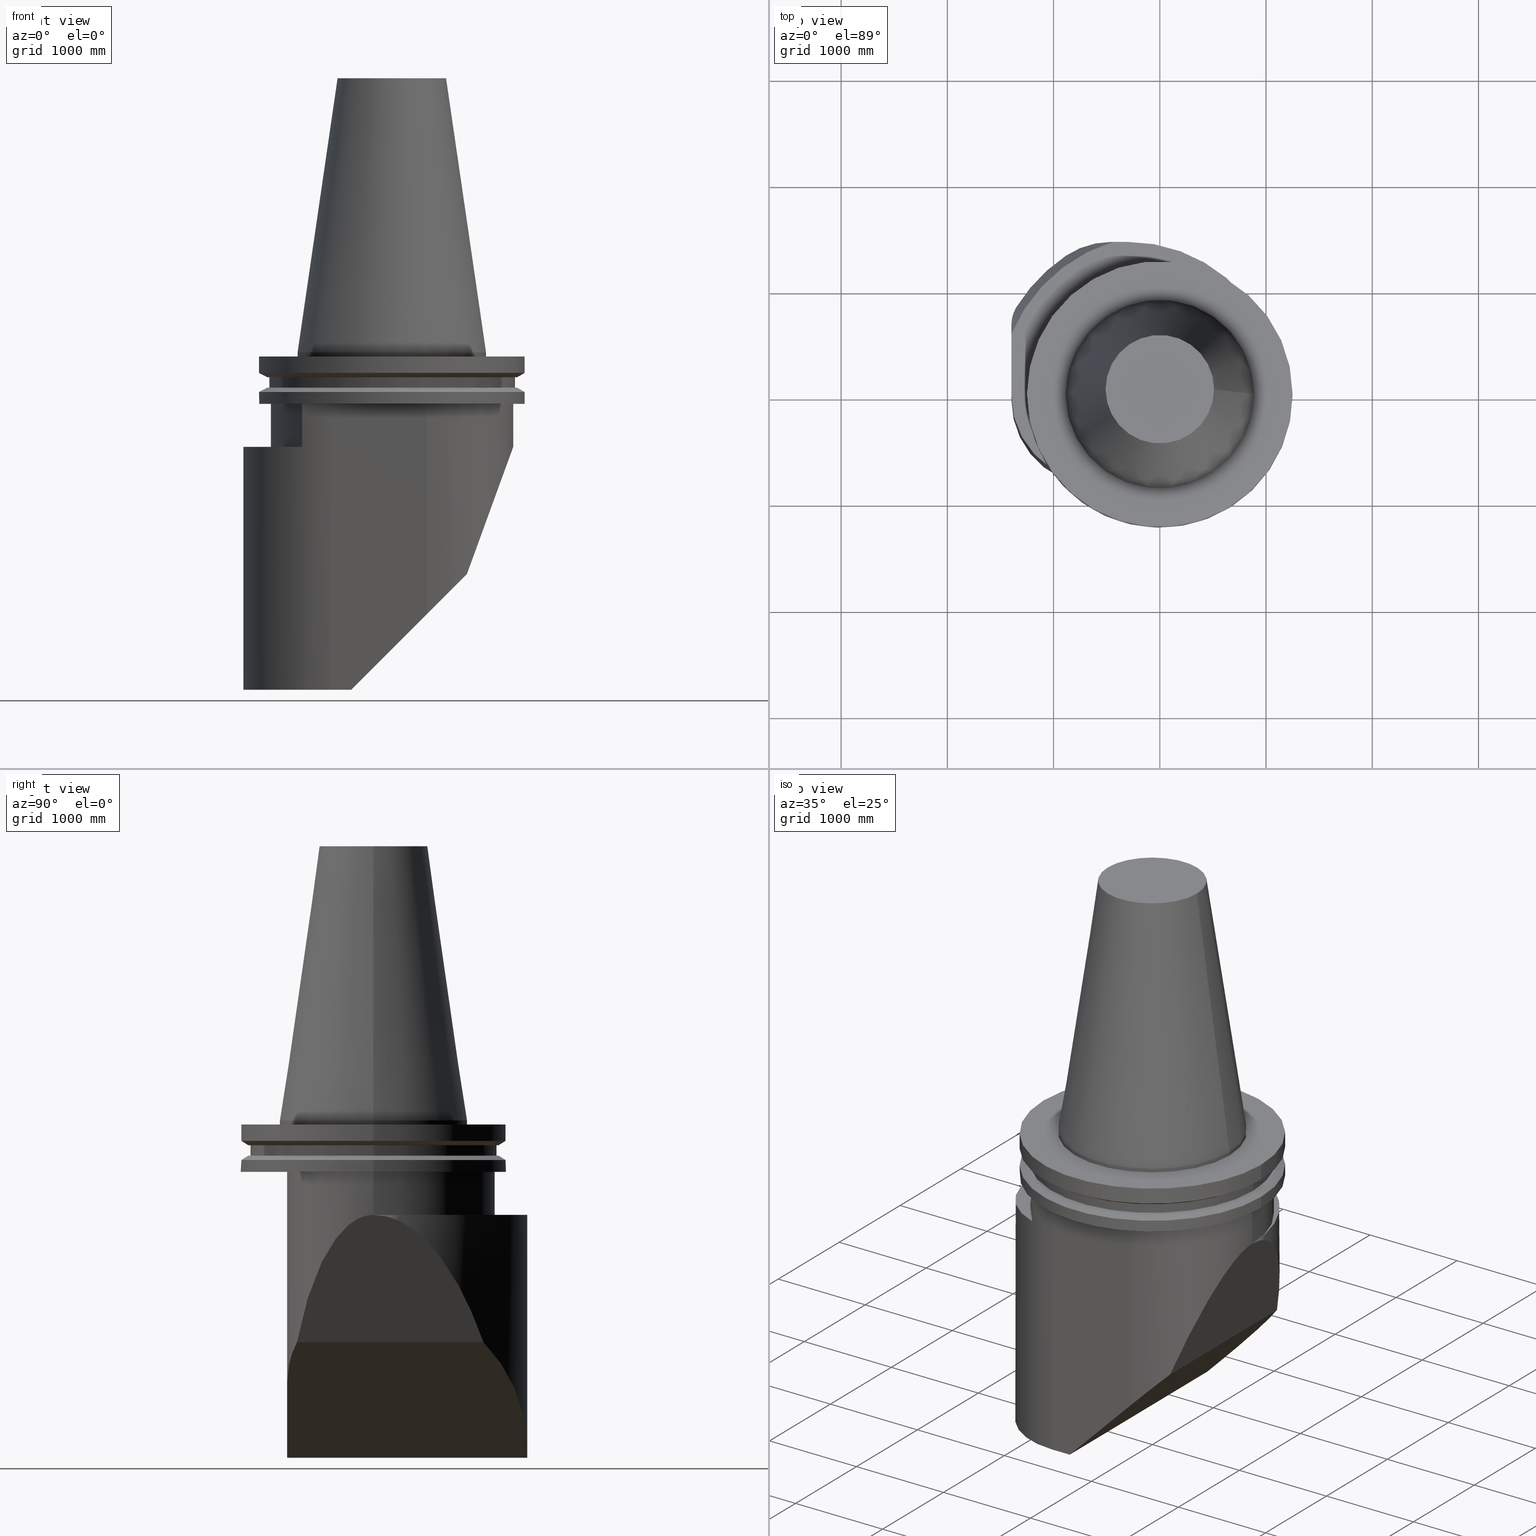
[diagram: canonical four-view strip — front | top / right | iso, engineering-drawing reading convention]
A machine part, canonical four-view strip (front | top / right | iso — engineering-drawing reading convention). The complete STEP part file that produces these views, byte-faithful:
ISO-10303-21;
HEADER;
FILE_DESCRIPTION((''),'1');
FILE_NAME('V:/01_Dxf_Field-HP\X2\FF71FF6FFF8CFF9F5916\X0\2013/BIGKAISER\X2\FF76FF80FF9BFF78FF9E63B28F095206\X0\_BKUS_201803/BCV50Y-180-BH/BCV50Y-180-BH1.000L-5.stp','2018-03-14T06:32:39',(''),(''),'Spatial Interop R21 SP3','Kubotek KeyCreator 2011 V10.0.2 (22737)',' ');
FILE_SCHEMA(('automotive_design'));
ENDSEC;
DATA;
#1=MECHANICAL_DESIGN_GEOMETRIC_PRESENTATION_REPRESENTATION(' ',(#10,#11,#12,#13,#14,#15,#16,#17,#18,#19,#20,#21,#22,#23,#24,#25,#26,#27,#28,#29,#30,#31,#32,#33,#34,#35,#36,#37,#38,#39,#40,#41,#42,#43,#44,#45,#46,#47,#48,#49,#50,#51,#52,#53,#54,#55,#56,#57,#58,#59,#60,#61,#62,#63,#64,#65,#66,#67,#68,#69,#70,#71,#72,#73,#74,#75,#76,#77,#78,#79,#80,#81,#82,#83,#84,#85,#86,#87,#88,#89,#90,#91,#92,#93,#94,#95,#96,#97,#98,#99,#100,#101,#102,#103,#104),#6);
#2=PRODUCT_DEFINITION_CONTEXT('',#105,'design');
#3=APPLICATION_PROTOCOL_DEFINITION('INTERNATIONAL STANDARD','automotive_design',1994,#105);
#4=PRODUCT_CATEGORY_RELATIONSHIP('NONE','NONE',#106,#107);
#5=SHAPE_DEFINITION_REPRESENTATION(#108,#109);
#6= (GEOMETRIC_REPRESENTATION_CONTEXT(3)GLOBAL_UNCERTAINTY_ASSIGNED_CONTEXT((#112))GLOBAL_UNIT_ASSIGNED_CONTEXT((#114,#115,#116))REPRESENTATION_CONTEXT('NONE','WORKSPACE'));
#10=STYLED_ITEM('',(#118),#119);
#11=STYLED_ITEM('',(#120),#121);
#12=STYLED_ITEM('',(#122),#123);
#13=STYLED_ITEM('',(#124),#125);
#14=STYLED_ITEM('',(#126),#127);
#15=STYLED_ITEM('',(#128,#129),#130);
#16=STYLED_ITEM('',(#131,#132),#133);
#17=STYLED_ITEM('',(#134,#135),#136);
#18=STYLED_ITEM('',(#137),#138);
#19=STYLED_ITEM('',(#139),#140);
#20=STYLED_ITEM('',(#141),#142);
#21=STYLED_ITEM('',(#143,#144),#145);
#22=STYLED_ITEM('',(#146),#147);
#23=STYLED_ITEM('',(#148),#149);
#24=STYLED_ITEM('',(#150,#151),#152);
#25=STYLED_ITEM('',(#153,#154),#155);
#26=STYLED_ITEM('',(#156,#157),#158);
#27=STYLED_ITEM('',(#159),#160);
#28=STYLED_ITEM('',(#161),#162);
#29=STYLED_ITEM('',(#163,#164),#165);
#30=STYLED_ITEM('',(#166,#167),#168);
#31=STYLED_ITEM('',(#169),#170);
#32=STYLED_ITEM('',(#171),#172);
#33=STYLED_ITEM('',(#173,#174),#175);
#34=STYLED_ITEM('',(#176,#177),#178);
#35=STYLED_ITEM('',(#179),#180);
#36=STYLED_ITEM('',(#181),#182);
#37=STYLED_ITEM('',(#183),#184);
#38=STYLED_ITEM('',(#185),#186);
#39=STYLED_ITEM('',(#187),#188);
#40=STYLED_ITEM('',(#189),#190);
#41=STYLED_ITEM('',(#191,#192),#193);
#42=STYLED_ITEM('',(#194),#195);
#43=STYLED_ITEM('',(#196),#197);
#44=STYLED_ITEM('',(#198),#199);
#45=STYLED_ITEM('',(#200,#201),#202);
#46=STYLED_ITEM('',(#203),#204);
#47=STYLED_ITEM('',(#205,#206),#207);
#48=STYLED_ITEM('',(#208),#209);
#49=STYLED_ITEM('',(#210,#211),#212);
#50=STYLED_ITEM('',(#213,#214),#215);
#51=STYLED_ITEM('',(#216),#217);
#52=STYLED_ITEM('',(#218,#219),#220);
#53=STYLED_ITEM('',(#221),#222);
#54=STYLED_ITEM('',(#223),#224);
#55=STYLED_ITEM('',(#225,#226),#227);
#56=STYLED_ITEM('',(#228,#229),#230);
#57=STYLED_ITEM('',(#231),#232);
#58=STYLED_ITEM('',(#233),#234);
#59=STYLED_ITEM('',(#235),#236);
#60=STYLED_ITEM('',(#237),#238);
#61=STYLED_ITEM('',(#239),#240);
#62=STYLED_ITEM('',(#241),#242);
#63=STYLED_ITEM('',(#243,#244),#245);
#64=STYLED_ITEM('',(#246),#247);
#65=STYLED_ITEM('',(#248,#249),#250);
#66=STYLED_ITEM('',(#251),#252);
#67=STYLED_ITEM('',(#253),#254);
#68=STYLED_ITEM('',(#255),#256);
#69=STYLED_ITEM('',(#257),#258);
#70=STYLED_ITEM('',(#259,#260),#261);
#71=STYLED_ITEM('',(#262),#263);
#72=STYLED_ITEM('',(#264),#265);
#73=STYLED_ITEM('',(#266,#267),#268);
#74=STYLED_ITEM('',(#269),#270);
#75=STYLED_ITEM('',(#271),#272);
#76=STYLED_ITEM('',(#273),#274);
#77=STYLED_ITEM('',(#275,#276),#277);
#78=STYLED_ITEM('',(#278),#279);
#79=STYLED_ITEM('',(#280),#281);
#80=STYLED_ITEM('',(#282,#283),#284);
#81=STYLED_ITEM('',(#285),#286);
#82=STYLED_ITEM('',(#287,#288),#289);
#83=STYLED_ITEM('',(#290,#291),#292);
#84=STYLED_ITEM('',(#293),#294);
#85=STYLED_ITEM('',(#295),#296);
#86=STYLED_ITEM('',(#297),#298);
#87=STYLED_ITEM('',(#299),#300);
#88=STYLED_ITEM('',(#301),#302);
#89=STYLED_ITEM('',(#303,#304),#305);
#90=STYLED_ITEM('',(#306),#307);
#91=STYLED_ITEM('',(#308),#309);
#92=STYLED_ITEM('',(#310),#311);
#93=STYLED_ITEM('',(#312,#313),#314);
#94=STYLED_ITEM('',(#315),#316);
#95=STYLED_ITEM('',(#317,#318),#319);
#96=STYLED_ITEM('',(#320,#321),#322);
#97=STYLED_ITEM('',(#323),#324);
#98=STYLED_ITEM('',(#325),#326);
#99=STYLED_ITEM('',(#327),#328);
#100=STYLED_ITEM('',(#329),#330);
#101=STYLED_ITEM('',(#331,#332),#333);
#102=STYLED_ITEM('',(#334),#335);
#103=STYLED_ITEM('',(#336),#337);
#104=STYLED_ITEM('',(#338),#339);
#105=APPLICATION_CONTEXT(' ');
#106=PRODUCT_CATEGORY('part','NONE');
#107=PRODUCT_RELATED_PRODUCT_CATEGORY('detail',' ',(#340));
#108=PRODUCT_DEFINITION_SHAPE('NONE','NONE',#341);
#109=ADVANCED_BREP_SHAPE_REPRESENTATION('Unnamed[1]',(#212,#342),#6);
#112=UNCERTAINTY_MEASURE_WITH_UNIT(LENGTH_MEASURE(1.0E-006),#114,'','');
#114= (CONVERSION_BASED_UNIT('INCH',#345)LENGTH_UNIT()NAMED_UNIT(#348));
#115= (NAMED_UNIT(#350)PLANE_ANGLE_UNIT()SI_UNIT($,.RADIAN.));
#116= (NAMED_UNIT(#350)SOLID_ANGLE_UNIT()SI_UNIT($,.STERADIAN.));
#118=PRESENTATION_STYLE_ASSIGNMENT((#356));
#119=EDGE_CURVE('Unnamed[1]',#357,#358,#359,.T.);
#120=PRESENTATION_STYLE_ASSIGNMENT((#360));
#121=EDGE_CURVE('Unnamed[1]',#361,#362,#363,.T.);
#122=PRESENTATION_STYLE_ASSIGNMENT((#364));
#123=EDGE_CURVE('Unnamed[1]',#365,#361,#366,.T.);
#124=PRESENTATION_STYLE_ASSIGNMENT((#367));
#125=EDGE_CURVE('Unnamed[1]',#368,#369,#370,.T.);
#126=PRESENTATION_STYLE_ASSIGNMENT((#371));
#127=EDGE_CURVE('Unnamed[1]',#365,#372,#373,.T.);
#128=PRESENTATION_STYLE_ASSIGNMENT((#374));
#129=PRESENTATION_STYLE_ASSIGNMENT((#375));
#130=ADVANCED_FACE('Unnamed[1]',(#376),#377,.F.);
#131=PRESENTATION_STYLE_ASSIGNMENT((#378));
#132=PRESENTATION_STYLE_ASSIGNMENT((#379));
#133=ADVANCED_FACE('Unnamed[1]',(#380),#381,.T.);
#134=PRESENTATION_STYLE_ASSIGNMENT((#382));
#135=PRESENTATION_STYLE_ASSIGNMENT((#383));
#136=ADVANCED_FACE('Unnamed[1]',(#384),#385,.T.);
#137=PRESENTATION_STYLE_ASSIGNMENT((#386));
#138=EDGE_CURVE('Unnamed[1]',#387,#357,#388,.T.);
#139=PRESENTATION_STYLE_ASSIGNMENT((#389));
#140=EDGE_CURVE('Unnamed[1]',#390,#391,#392,.T.);
#141=PRESENTATION_STYLE_ASSIGNMENT((#393));
#142=EDGE_CURVE('Unnamed[1]',#394,#395,#396,.T.);
#143=PRESENTATION_STYLE_ASSIGNMENT((#397));
#144=PRESENTATION_STYLE_ASSIGNMENT((#398));
#145=ADVANCED_FACE('Unnamed[1]',(#399),#400,.T.);
#146=PRESENTATION_STYLE_ASSIGNMENT((#401));
#147=EDGE_CURVE('Unnamed[1]',#402,#403,#404,.T.);
#148=PRESENTATION_STYLE_ASSIGNMENT((#405));
#149=EDGE_CURVE('Unnamed[1]',#406,#407,#408,.T.);
#150=PRESENTATION_STYLE_ASSIGNMENT((#409));
#151=PRESENTATION_STYLE_ASSIGNMENT((#410));
#152=ADVANCED_FACE('Unnamed[1]',(#411),#412,.T.);
#153=PRESENTATION_STYLE_ASSIGNMENT((#413));
#154=PRESENTATION_STYLE_ASSIGNMENT((#414));
#155=ADVANCED_FACE('Unnamed[1]',(#415,#416),#417,.T.);
#156=PRESENTATION_STYLE_ASSIGNMENT((#418));
#157=PRESENTATION_STYLE_ASSIGNMENT((#419));
#158=ADVANCED_FACE('Unnamed[1]',(#420),#421,.T.);
#159=PRESENTATION_STYLE_ASSIGNMENT((#422));
#160=EDGE_CURVE('Unnamed[1]',#395,#423,#424,.T.);
#161=PRESENTATION_STYLE_ASSIGNMENT((#425));
#162=EDGE_CURVE('Unnamed[1]',#426,#426,#427,.T.);
#163=PRESENTATION_STYLE_ASSIGNMENT((#428));
#164=PRESENTATION_STYLE_ASSIGNMENT((#429));
#165=ADVANCED_FACE('Unnamed[1]',(#430,#431),#432,.T.);
#166=PRESENTATION_STYLE_ASSIGNMENT((#433));
#167=PRESENTATION_STYLE_ASSIGNMENT((#434));
#168=ADVANCED_FACE('Unnamed[1]',(#435),#436,.F.);
#169=PRESENTATION_STYLE_ASSIGNMENT((#437));
#170=EDGE_CURVE('Unnamed[1]',#438,#438,#439,.T.);
#171=PRESENTATION_STYLE_ASSIGNMENT((#440));
#172=EDGE_CURVE('Unnamed[1]',#441,#407,#442,.T.);
#173=PRESENTATION_STYLE_ASSIGNMENT((#443));
#174=PRESENTATION_STYLE_ASSIGNMENT((#444));
#175=ADVANCED_FACE('Unnamed[1]',(#445),#446,.F.);
#176=PRESENTATION_STYLE_ASSIGNMENT((#447));
#177=PRESENTATION_STYLE_ASSIGNMENT((#448));
#178=ADVANCED_FACE('Unnamed[1]',(#449,#450),#451,.T.);
#179=PRESENTATION_STYLE_ASSIGNMENT((#452));
#180=EDGE_CURVE('Unnamed[1]',#453,#454,#455,.T.);
#181=PRESENTATION_STYLE_ASSIGNMENT((#456));
#182=EDGE_CURVE('Unnamed[1]',#369,#457,#458,.T.);
#183=PRESENTATION_STYLE_ASSIGNMENT((#459));
#184=EDGE_CURVE('Unnamed[1]',#460,#461,#462,.T.);
#185=PRESENTATION_STYLE_ASSIGNMENT((#463));
#186=EDGE_CURVE('Unnamed[1]',#457,#402,#464,.T.);
#187=PRESENTATION_STYLE_ASSIGNMENT((#465));
#188=EDGE_CURVE('Unnamed[1]',#395,#466,#467,.T.);
#189=PRESENTATION_STYLE_ASSIGNMENT((#468));
#190=EDGE_CURVE('Unnamed[1]',#469,#469,#470,.T.);
#191=PRESENTATION_STYLE_ASSIGNMENT((#471));
#192=PRESENTATION_STYLE_ASSIGNMENT((#472));
#193=ADVANCED_FACE('Unnamed[1]',(#473),#474,.T.);
#194=PRESENTATION_STYLE_ASSIGNMENT((#475));
#195=EDGE_CURVE('Unnamed[1]',#476,#476,#477,.T.);
#196=PRESENTATION_STYLE_ASSIGNMENT((#478));
#197=EDGE_CURVE('Unnamed[1]',#454,#406,#479,.T.);
#198=PRESENTATION_STYLE_ASSIGNMENT((#480));
#199=EDGE_CURVE('Unnamed[1]',#481,#481,#482,.T.);
#200=PRESENTATION_STYLE_ASSIGNMENT((#483));
#201=PRESENTATION_STYLE_ASSIGNMENT((#484));
#202=ADVANCED_FACE('Unnamed[1]',(#485,#486),#487,.T.);
#203=PRESENTATION_STYLE_ASSIGNMENT((#488));
#204=EDGE_CURVE('Unnamed[1]',#441,#489,#490,.T.);
#205=PRESENTATION_STYLE_ASSIGNMENT((#491));
#206=PRESENTATION_STYLE_ASSIGNMENT((#492));
#207=ADVANCED_FACE('Unnamed[1]',(#493),#494,.F.);
#208=PRESENTATION_STYLE_ASSIGNMENT((#495));
#209=EDGE_CURVE('Unnamed[1]',#391,#387,#496,.T.);
#210=PRESENTATION_STYLE_ASSIGNMENT((#497));
#211=PRESENTATION_STYLE_ASSIGNMENT((#498));
#212=MANIFOLD_SOLID_BREP('Unnamed[1]',#499);
#213=PRESENTATION_STYLE_ASSIGNMENT((#500));
#214=PRESENTATION_STYLE_ASSIGNMENT((#501));
#215=ADVANCED_FACE('Unnamed[1]',(#502),#503,.F.);
#216=PRESENTATION_STYLE_ASSIGNMENT((#504));
#217=EDGE_CURVE('Unnamed[1]',#505,#506,#507,.T.);
#218=PRESENTATION_STYLE_ASSIGNMENT((#508));
#219=PRESENTATION_STYLE_ASSIGNMENT((#509));
#220=ADVANCED_FACE('Unnamed[1]',(#510),#511,.T.);
#221=PRESENTATION_STYLE_ASSIGNMENT((#512));
#222=EDGE_CURVE('Unnamed[1]',#505,#453,#513,.T.);
#223=PRESENTATION_STYLE_ASSIGNMENT((#514));
#224=EDGE_CURVE('Unnamed[1]',#362,#372,#515,.T.);
#225=PRESENTATION_STYLE_ASSIGNMENT((#516));
#226=PRESENTATION_STYLE_ASSIGNMENT((#517));
#227=ADVANCED_FACE('Unnamed[1]',(#518),#519,.F.);
#228=PRESENTATION_STYLE_ASSIGNMENT((#520));
#229=PRESENTATION_STYLE_ASSIGNMENT((#521));
#230=ADVANCED_FACE('Unnamed[1]',(#522,#523),#524,.T.);
#231=PRESENTATION_STYLE_ASSIGNMENT((#525));
#232=EDGE_CURVE('Unnamed[1]',#526,#394,#527,.T.);
#233=PRESENTATION_STYLE_ASSIGNMENT((#528));
#234=EDGE_CURVE('Unnamed[1]',#529,#529,#530,.T.);
#235=PRESENTATION_STYLE_ASSIGNMENT((#531));
#236=EDGE_CURVE('Unnamed[1]',#532,#532,#533,.T.);
#237=PRESENTATION_STYLE_ASSIGNMENT((#534));
#238=EDGE_CURVE('Unnamed[1]',#358,#457,#535,.T.);
#239=PRESENTATION_STYLE_ASSIGNMENT((#536));
#240=EDGE_CURVE('Unnamed[1]',#506,#365,#537,.T.);
#241=PRESENTATION_STYLE_ASSIGNMENT((#538));
#242=EDGE_CURVE('Unnamed[1]',#526,#423,#539,.T.);
#243=PRESENTATION_STYLE_ASSIGNMENT((#540));
#244=PRESENTATION_STYLE_ASSIGNMENT((#541));
#245=ADVANCED_FACE('Unnamed[1]',(#542),#543,.F.);
#246=PRESENTATION_STYLE_ASSIGNMENT((#544));
#247=EDGE_CURVE('Unnamed[1]',#466,#545,#546,.T.);
#248=PRESENTATION_STYLE_ASSIGNMENT((#547));
#249=PRESENTATION_STYLE_ASSIGNMENT((#548));
#250=ADVANCED_FACE('Unnamed[1]',(#549),#550,.T.);
#251=PRESENTATION_STYLE_ASSIGNMENT((#551));
#252=EDGE_CURVE('Unnamed[1]',#403,#460,#552,.T.);
#253=PRESENTATION_STYLE_ASSIGNMENT((#553));
#254=EDGE_CURVE('Unnamed[1]',#391,#526,#554,.T.);
#255=PRESENTATION_STYLE_ASSIGNMENT((#555));
#256=EDGE_CURVE('Unnamed[1]',#454,#441,#556,.T.);
#257=PRESENTATION_STYLE_ASSIGNMENT((#557));
#258=EDGE_CURVE('Unnamed[1]',#368,#407,#558,.T.);
#259=PRESENTATION_STYLE_ASSIGNMENT((#559));
#260=PRESENTATION_STYLE_ASSIGNMENT((#560));
#261=ADVANCED_FACE('Unnamed[1]',(#561,#562),#563,.T.);
#262=PRESENTATION_STYLE_ASSIGNMENT((#564));
#263=EDGE_CURVE('Unnamed[1]',#506,#565,#566,.T.);
#264=PRESENTATION_STYLE_ASSIGNMENT((#567));
#265=EDGE_CURVE('Unnamed[1]',#489,#568,#569,.T.);
#266=PRESENTATION_STYLE_ASSIGNMENT((#570));
#267=PRESENTATION_STYLE_ASSIGNMENT((#571));
#268=ADVANCED_FACE('Unnamed[1]',(#572,#573),#574,.T.);
#269=PRESENTATION_STYLE_ASSIGNMENT((#575));
#270=EDGE_CURVE('Unnamed[1]',#565,#461,#576,.T.);
#271=PRESENTATION_STYLE_ASSIGNMENT((#577));
#272=EDGE_CURVE('Unnamed[1]',#406,#369,#578,.T.);
#273=PRESENTATION_STYLE_ASSIGNMENT((#579));
#274=EDGE_CURVE('Unnamed[1]',#545,#357,#580,.T.);
#275=PRESENTATION_STYLE_ASSIGNMENT((#581));
#276=PRESENTATION_STYLE_ASSIGNMENT((#582));
#277=ADVANCED_FACE('Unnamed[1]',(#583,#584),#585,.T.);
#278=PRESENTATION_STYLE_ASSIGNMENT((#586));
#279=EDGE_CURVE('Unnamed[1]',#489,#453,#587,.T.);
#280=PRESENTATION_STYLE_ASSIGNMENT((#588));
#281=EDGE_CURVE('Unnamed[1]',#394,#403,#589,.T.);
#282=PRESENTATION_STYLE_ASSIGNMENT((#590));
#283=PRESENTATION_STYLE_ASSIGNMENT((#591));
#284=ADVANCED_FACE('Unnamed[1]',(#592),#593,.F.);
#285=PRESENTATION_STYLE_ASSIGNMENT((#594));
#286=EDGE_CURVE('Unnamed[1]',#568,#595,#596,.T.);
#287=PRESENTATION_STYLE_ASSIGNMENT((#597));
#288=PRESENTATION_STYLE_ASSIGNMENT((#598));
#289=ADVANCED_FACE('Unnamed[1]',(#599),#600,.T.);
#290=PRESENTATION_STYLE_ASSIGNMENT((#601));
#291=PRESENTATION_STYLE_ASSIGNMENT((#602));
#292=ADVANCED_FACE('Unnamed[1]',(#603),#604,.T.);
#293=PRESENTATION_STYLE_ASSIGNMENT((#605));
#294=EDGE_CURVE('Unnamed[1]',#460,#362,#606,.T.);
#295=PRESENTATION_STYLE_ASSIGNMENT((#607));
#296=EDGE_CURVE('Unnamed[1]',#402,#466,#608,.T.);
#297=PRESENTATION_STYLE_ASSIGNMENT((#609));
#298=EDGE_CURVE('Unnamed[1]',#390,#565,#610,.T.);
#299=PRESENTATION_STYLE_ASSIGNMENT((#611));
#300=EDGE_CURVE('Unnamed[1]',#387,#612,#613,.T.);
#301=PRESENTATION_STYLE_ASSIGNMENT((#614));
#302=EDGE_CURVE('Unnamed[1]',#595,#368,#615,.T.);
#303=PRESENTATION_STYLE_ASSIGNMENT((#616));
#304=PRESENTATION_STYLE_ASSIGNMENT((#617));
#305=ADVANCED_FACE('Unnamed[1]',(#618,#619),#620,.T.);
#306=PRESENTATION_STYLE_ASSIGNMENT((#621));
#307=EDGE_CURVE('Unnamed[1]',#622,#622,#623,.T.);
#308=PRESENTATION_STYLE_ASSIGNMENT((#624));
#309=EDGE_CURVE('Unnamed[1]',#568,#390,#625,.T.);
#310=PRESENTATION_STYLE_ASSIGNMENT((#626));
#311=EDGE_CURVE('Unnamed[1]',#545,#387,#627,.T.);
#312=PRESENTATION_STYLE_ASSIGNMENT((#628));
#313=PRESENTATION_STYLE_ASSIGNMENT((#629));
#314=ADVANCED_FACE('Unnamed[1]',(#630),#631,.T.);
#315=PRESENTATION_STYLE_ASSIGNMENT((#632));
#316=EDGE_CURVE('Unnamed[1]',#633,#633,#634,.T.);
#317=PRESENTATION_STYLE_ASSIGNMENT((#635));
#318=PRESENTATION_STYLE_ASSIGNMENT((#636));
#319=ADVANCED_FACE('Unnamed[1]',(#637,#638),#639,.T.);
#320=PRESENTATION_STYLE_ASSIGNMENT((#640));
#321=PRESENTATION_STYLE_ASSIGNMENT((#641));
#322=ADVANCED_FACE('Unnamed[1]',(#642),#643,.F.);
#323=PRESENTATION_STYLE_ASSIGNMENT((#644));
#324=EDGE_CURVE('Unnamed[1]',#358,#612,#645,.T.);
#325=PRESENTATION_STYLE_ASSIGNMENT((#646));
#326=EDGE_CURVE('Unnamed[1]',#372,#505,#647,.T.);
#327=PRESENTATION_STYLE_ASSIGNMENT((#648));
#328=EDGE_CURVE('Unnamed[1]',#649,#649,#650,.T.);
#329=PRESENTATION_STYLE_ASSIGNMENT((#651));
#330=EDGE_CURVE('Unnamed[1]',#361,#461,#652,.T.);
#331=PRESENTATION_STYLE_ASSIGNMENT((#653));
#332=PRESENTATION_STYLE_ASSIGNMENT((#654));
#333=ADVANCED_FACE('Unnamed[1]',(#655,#656),#657,.T.);
#334=PRESENTATION_STYLE_ASSIGNMENT((#658));
#335=EDGE_CURVE('Unnamed[1]',#612,#595,#659,.T.);
#336=PRESENTATION_STYLE_ASSIGNMENT((#660));
#337=EDGE_CURVE('Unnamed[1]',#387,#423,#661,.T.);
#338=PRESENTATION_STYLE_ASSIGNMENT((#662));
#339=EDGE_CURVE('Unnamed[1]',#663,#663,#664,.T.);
#340=PRODUCT('Unnamed[1]','Unnamed[1]','PART-Unnamed[1]-DESC',(#665));
#341=PRODUCT_DEFINITION('NONE','NONE',#666,#2);
#342=AXIS2_PLACEMENT_3D('',#667,#668,#669);
#345=LENGTH_MEASURE_WITH_UNIT(LENGTH_MEASURE(25.4),#670);
#348=DIMENSIONAL_EXPONENTS(1.0,0.0,0.0,0.0,0.0,0.0,0.0);
#350=DIMENSIONAL_EXPONENTS(0.0,0.0,0.0,0.0,0.0,0.0,0.0);
#356=CURVE_STYLE('',#671,POSITIVE_LENGTH_MEASURE(1000.0),#672);
#357=VERTEX_POINT('',#673);
#358=VERTEX_POINT('',#674);
#359=ELLIPSE('',#675,80.6101730552766,57.0);
#360=CURVE_STYLE('',#676,POSITIVE_LENGTH_MEASURE(1000.0),#677);
#361=VERTEX_POINT('',#678);
#362=VERTEX_POINT('',#679);
#363=LINE('',#680,#681);
#364=CURVE_STYLE('',#682,POSITIVE_LENGTH_MEASURE(1000.0),#683);
#365=VERTEX_POINT('',#684);
#366=LINE('',#685,#686);
#367=CURVE_STYLE('',#687,POSITIVE_LENGTH_MEASURE(1000.0),#688);
#368=VERTEX_POINT('',#689);
#369=VERTEX_POINT('',#690);
#370=LINE('',#691,#692);
#371=CURVE_STYLE('',#693,POSITIVE_LENGTH_MEASURE(1000.0),#694);
#372=VERTEX_POINT('',#695);
#373=LINE('',#696,#697);
#374=SURFACE_STYLE_USAGE(.BOTH.,#698);
#375=CURVE_STYLE('',#699,POSITIVE_LENGTH_MEASURE(1000.0),#700);
#376=FACE_OUTER_BOUND('',#701,.T.);
#377=PLANE('',#702);
#378=SURFACE_STYLE_USAGE(.BOTH.,#703);
#379=CURVE_STYLE('',#704,POSITIVE_LENGTH_MEASURE(1000.0),#705);
#380=FACE_OUTER_BOUND('',#706,.T.);
#381=CYLINDRICAL_SURFACE('',#707,45.0000000000001);
#382=SURFACE_STYLE_USAGE(.BOTH.,#708);
#383=CURVE_STYLE('',#709,POSITIVE_LENGTH_MEASURE(1000.0),#710);
#384=FACE_OUTER_BOUND('',#711,.T.);
#385=CYLINDRICAL_SURFACE('',#712,30.0);
#386=CURVE_STYLE('',#713,POSITIVE_LENGTH_MEASURE(1000.0),#714);
#387=VERTEX_POINT('',#715);
#388=ELLIPSE('',#716,166.656850809296,57.0);
#389=CURVE_STYLE('',#717,POSITIVE_LENGTH_MEASURE(1000.0),#718);
#390=VERTEX_POINT('',#719);
#391=VERTEX_POINT('',#720);
#392=CIRCLE('',#721,32.0);
#393=CURVE_STYLE('',#722,POSITIVE_LENGTH_MEASURE(1000.0),#723);
#394=VERTEX_POINT('',#724);
#395=VERTEX_POINT('',#725);
#396=LINE('',#726,#727);
#397=SURFACE_STYLE_USAGE(.BOTH.,#728);
#398=CURVE_STYLE('',#729,POSITIVE_LENGTH_MEASURE(1000.0),#730);
#399=FACE_OUTER_BOUND('',#731,.T.);
#400=PLANE('',#732);
#401=CURVE_STYLE('',#733,POSITIVE_LENGTH_MEASURE(1000.0),#734);
#402=VERTEX_POINT('',#735);
#403=VERTEX_POINT('',#736);
#404=LINE('',#737,#738);
#405=CURVE_STYLE('',#739,POSITIVE_LENGTH_MEASURE(1000.0),#740);
#406=VERTEX_POINT('',#741);
#407=VERTEX_POINT('',#742);
#408=LINE('',#743,#744);
#409=SURFACE_STYLE_USAGE(.BOTH.,#745);
#410=CURVE_STYLE('',#746,POSITIVE_LENGTH_MEASURE(1000.0),#747);
#411=FACE_OUTER_BOUND('',#748,.T.);
#412=CYLINDRICAL_SURFACE('',#749,11.9998183436439);
#413=SURFACE_STYLE_USAGE(.BOTH.,#750);
#414=CURVE_STYLE('',#751,POSITIVE_LENGTH_MEASURE(1000.0),#752);
#415=FACE_BOUND('',#753,.T.);
#416=FACE_BOUND('',#754,.T.);
#417=CYLINDRICAL_SURFACE('',#755,49.2125);
#418=SURFACE_STYLE_USAGE(.BOTH.,#756);
#419=CURVE_STYLE('',#757,POSITIVE_LENGTH_MEASURE(1000.0),#758);
#420=FACE_OUTER_BOUND('',#759,.T.);
#421=CONICAL_SURFACE('',#760,61.0355339059327,0.785398163397448);
#422=CURVE_STYLE('',#761,POSITIVE_LENGTH_MEASURE(1000.0),#762);
#423=VERTEX_POINT('',#763);
#424=CIRCLE('',#764,32.0);
#425=CURVE_STYLE('',#765,POSITIVE_LENGTH_MEASURE(1000.0),#766);
#426=VERTEX_POINT('',#767);
#427=CIRCLE('',#768,34.925);
#428=SURFACE_STYLE_USAGE(.BOTH.,#769);
#429=CURVE_STYLE('',#770,POSITIVE_LENGTH_MEASURE(1000.0),#771);
#430=FACE_BOUND('',#772,.T.);
#431=FACE_BOUND('',#773,.T.);
#432=CYLINDRICAL_SURFACE('',#774,34.925);
#433=SURFACE_STYLE_USAGE(.BOTH.,#775);
#434=CURVE_STYLE('',#776,POSITIVE_LENGTH_MEASURE(1000.0),#777);
#435=FACE_OUTER_BOUND('',#778,.T.);
#436=PLANE('',#779);
#437=CURVE_STYLE('',#780,POSITIVE_LENGTH_MEASURE(1000.0),#781);
#438=VERTEX_POINT('',#782);
#439=CIRCLE('',#783,49.2125);
#440=CURVE_STYLE('',#784,POSITIVE_LENGTH_MEASURE(1000.0),#785);
#441=VERTEX_POINT('',#786);
#442=CIRCLE('',#787,62.5000000000001);
#443=SURFACE_STYLE_USAGE(.BOTH.,#788);
#444=CURVE_STYLE('',#789,POSITIVE_LENGTH_MEASURE(1000.0),#790);
#445=FACE_OUTER_BOUND('',#791,.T.);
#446=PLANE('',#792);
#447=SURFACE_STYLE_USAGE(.BOTH.,#793);
#448=CURVE_STYLE('',#794,POSITIVE_LENGTH_MEASURE(1000.0),#795);
#449=FACE_BOUND('',#796,.T.);
#450=FACE_OUTER_BOUND('',#797,.T.);
#451=PLANE('',#798);
#452=CURVE_STYLE('',#799,POSITIVE_LENGTH_MEASURE(1000.0),#800);
#453=VERTEX_POINT('',#801);
#454=VERTEX_POINT('',#802);
#455=CIRCLE('',#803,11.9998183436439);
#456=CURVE_STYLE('',#804,POSITIVE_LENGTH_MEASURE(1000.0),#805);
#457=VERTEX_POINT('',#806);
#458=LINE('',#807,#808);
#459=CURVE_STYLE('',#809,POSITIVE_LENGTH_MEASURE(1000.0),#810);
#460=VERTEX_POINT('',#811);
#461=VERTEX_POINT('',#812);
#462=LINE('',#813,#814);
#463=CURVE_STYLE('',#815,POSITIVE_LENGTH_MEASURE(1000.0),#816);
#464=LINE('',#817,#818);
#465=CURVE_STYLE('',#819,POSITIVE_LENGTH_MEASURE(1000.0),#820);
#466=VERTEX_POINT('',#821);
#467=LINE('',#822,#823);
#468=CURVE_STYLE('',#824,POSITIVE_LENGTH_MEASURE(1000.0),#825);
#469=VERTEX_POINT('',#826);
#470=CIRCLE('',#827,45.645);
#471=SURFACE_STYLE_USAGE(.BOTH.,#828);
#472=CURVE_STYLE('',#829,POSITIVE_LENGTH_MEASURE(1000.0),#830);
#473=FACE_OUTER_BOUND('',#831,.T.);
#474=PLANE('',#832);
#475=CURVE_STYLE('',#833,POSITIVE_LENGTH_MEASURE(1000.0),#834);
#476=VERTEX_POINT('',#835);
#477=CIRCLE('',#836,20.1083333297217);
#478=CURVE_STYLE('',#837,POSITIVE_LENGTH_MEASURE(1000.0),#838);
#479=CIRCLE('',#839,62.5000000000001);
#480=CURVE_STYLE('',#840,POSITIVE_LENGTH_MEASURE(1000.0),#841);
#481=VERTEX_POINT('',#842);
#482=CIRCLE('',#843,49.2125);
#483=SURFACE_STYLE_USAGE(.BOTH.,#844);
#484=CURVE_STYLE('',#845,POSITIVE_LENGTH_MEASURE(1000.0),#846);
#485=FACE_BOUND('',#847,.T.);
#486=FACE_BOUND('',#848,.T.);
#487=CYLINDRICAL_SURFACE('',#849,49.2125);
#488=CURVE_STYLE('',#850,POSITIVE_LENGTH_MEASURE(1000.0),#851);
#489=VERTEX_POINT('',#852);
#490=B_SPLINE_CURVE_WITH_KNOTS('',3,(#853,#854,#855,#856,#857,#858,#859,#860,#861,#862),.UNSPECIFIED.,.F.,.F.,(4,2,2,2,4),(8.71112183221037,11.6148291096138,14.5185363870173,17.4222436644207,20.3259509418242),.UNSPECIFIED.);
#491=SURFACE_STYLE_USAGE(.BOTH.,#863);
#492=CURVE_STYLE('',#864,POSITIVE_LENGTH_MEASURE(1000.0),#865);
#493=FACE_OUTER_BOUND('',#866,.T.);
#494=PLANE('',#867);
#495=CURVE_STYLE('',#868,POSITIVE_LENGTH_MEASURE(1000.0),#869);
#496=CIRCLE('',#870,45.0000000000001);
#497=SURFACE_STYLE_USAGE(.BOTH.,#871);
#498=CURVE_STYLE('',#872,POSITIVE_LENGTH_MEASURE(1000.0),#873);
#499=CLOSED_SHELL('',(#168,#245,#227,#215,#145,#322,#130,#284,#314,#175,#207,#152,#289,#136,#250,#292,#158,#193,#133,#220,#230,#165,#277,#202,#333,#178,#268,#319,#305,#155,#261));
#500=SURFACE_STYLE_USAGE(.BOTH.,#874);
#501=CURVE_STYLE('',#875,POSITIVE_LENGTH_MEASURE(1000.0),#876);
#502=FACE_OUTER_BOUND('',#877,.T.);
#503=PLANE('',#878);
#504=CURVE_STYLE('',#879,POSITIVE_LENGTH_MEASURE(1000.0),#880);
#505=VERTEX_POINT('',#881);
#506=VERTEX_POINT('',#882);
#507=LINE('',#883,#884);
#508=SURFACE_STYLE_USAGE(.BOTH.,#885);
#509=CURVE_STYLE('',#886,POSITIVE_LENGTH_MEASURE(1000.0),#887);
#510=FACE_OUTER_BOUND('',#888,.T.);
#511=PLANE('',#889);
#512=CURVE_STYLE('',#890,POSITIVE_LENGTH_MEASURE(1000.0),#891);
#513=LINE('',#892,#893);
#514=CURVE_STYLE('',#894,POSITIVE_LENGTH_MEASURE(1000.0),#895);
#515=LINE('',#896,#897);
#516=SURFACE_STYLE_USAGE(.BOTH.,#898);
#517=CURVE_STYLE('',#899,POSITIVE_LENGTH_MEASURE(1000.0),#900);
#518=FACE_OUTER_BOUND('',#901,.T.);
#519=PLANE('',#902);
#520=SURFACE_STYLE_USAGE(.BOTH.,#903);
#521=CURVE_STYLE('',#904,POSITIVE_LENGTH_MEASURE(1000.0),#905);
#522=FACE_BOUND('',#906,.T.);
#523=FACE_BOUND('',#907,.T.);
#524=CONICAL_SURFACE('',#908,27.5166666648608,0.144812498273746);
#525=CURVE_STYLE('',#909,POSITIVE_LENGTH_MEASURE(1000.0),#910);
#526=VERTEX_POINT('',#911);
#527=CIRCLE('',#912,32.0);
#528=CURVE_STYLE('',#913,POSITIVE_LENGTH_MEASURE(1000.0),#914);
#529=VERTEX_POINT('',#915);
#530=CIRCLE('',#916,45.645);
#531=CURVE_STYLE('',#917,POSITIVE_LENGTH_MEASURE(1000.0),#918);
#532=VERTEX_POINT('',#919);
#533=CIRCLE('',#920,49.2125);
#534=CURVE_STYLE('',#921,POSITIVE_LENGTH_MEASURE(1000.0),#922);
#535=LINE('',#923,#924);
#536=CURVE_STYLE('',#925,POSITIVE_LENGTH_MEASURE(1000.0),#926);
#537=LINE('',#927,#928);
#538=CURVE_STYLE('',#929,POSITIVE_LENGTH_MEASURE(1000.0),#930);
#539=CIRCLE('',#931,45.0000000000001);
#540=SURFACE_STYLE_USAGE(.BOTH.,#932);
#541=CURVE_STYLE('',#933,POSITIVE_LENGTH_MEASURE(1000.0),#934);
#542=FACE_OUTER_BOUND('',#935,.T.);
#543=PLANE('',#936);
#544=CURVE_STYLE('',#937,POSITIVE_LENGTH_MEASURE(1000.0),#938);
#545=VERTEX_POINT('',#939);
#546=ELLIPSE('',#940,45.2548339959448,32.0);
#547=SURFACE_STYLE_USAGE(.BOTH.,#941);
#548=CURVE_STYLE('',#942,POSITIVE_LENGTH_MEASURE(1000.0),#943);
#549=FACE_OUTER_BOUND('',#944,.T.);
#550=CYLINDRICAL_SURFACE('',#945,32.0);
#551=CURVE_STYLE('',#946,POSITIVE_LENGTH_MEASURE(1000.0),#947);
#552=CIRCLE('',#948,32.0);
#553=CURVE_STYLE('',#949,POSITIVE_LENGTH_MEASURE(1000.0),#950);
#554=LINE('',#951,#952);
#555=CURVE_STYLE('',#953,POSITIVE_LENGTH_MEASURE(1000.0),#954);
#556=LINE('',#955,#956);
#557=CURVE_STYLE('',#957,POSITIVE_LENGTH_MEASURE(1000.0),#958);
#558=B_SPLINE_CURVE_WITH_KNOTS('',3,(#959,#960,#961,#962,#963,#964,#965,#966,#967,#968,#969,#970,#971,#972,#973,#974,#975,#976),.UNSPECIFIED.,.F.,.F.,(4,2,2,2,2,2,2,2,4),(2.62180326778914,5.24360653557829,7.86540980336743,10.4872130711566,13.1090163389457,15.7308196067349,18.352622874524,20.9744261423131,23.5962294101023),.UNSPECIFIED.);
#559=SURFACE_STYLE_USAGE(.BOTH.,#977);
#560=CURVE_STYLE('',#978,POSITIVE_LENGTH_MEASURE(1000.0),#979);
#561=FACE_OUTER_BOUND('',#980,.T.);
#562=FACE_BOUND('',#981,.T.);
#563=PLANE('',#982);
#564=CURVE_STYLE('',#983,POSITIVE_LENGTH_MEASURE(1000.0),#984);
#565=VERTEX_POINT('',#985);
#566=LINE('',#986,#987);
#567=CURVE_STYLE('',#988,POSITIVE_LENGTH_MEASURE(1000.0),#989);
#568=VERTEX_POINT('',#990);
#569=(B_SPLINE_CURVE(2,(#992,#993,#994),.UNSPECIFIED.,.F.,.F.)B_SPLINE_CURVE_WITH_KNOTS((3,3),(0.0,7.40632866293267),.UNSPECIFIED.)RATIONAL_B_SPLINE_CURVE((1.0,1.00155566136629,1.0))BOUNDED_CURVE()REPRESENTATION_ITEM('')GEOMETRIC_REPRESENTATION_ITEM()CURVE());
#570=SURFACE_STYLE_USAGE(.BOTH.,#1001);
#571=CURVE_STYLE('',#1002,POSITIVE_LENGTH_MEASURE(1000.0),#1003);
#572=FACE_BOUND('',#1004,.T.);
#573=FACE_BOUND('',#1005,.T.);
#574=CYLINDRICAL_SURFACE('',#1006,45.645);
#575=CURVE_STYLE('',#1007,POSITIVE_LENGTH_MEASURE(1000.0),#1008);
#576=CIRCLE('',#1009,32.0);
#577=CURVE_STYLE('',#1010,POSITIVE_LENGTH_MEASURE(1000.0),#1011);
#578=CIRCLE('',#1012,30.0);
#579=CURVE_STYLE('',#1013,POSITIVE_LENGTH_MEASURE(1000.0),#1014);
#580=LINE('',#1015,#1016);
#581=SURFACE_STYLE_USAGE(.BOTH.,#1017);
#582=CURVE_STYLE('',#1018,POSITIVE_LENGTH_MEASURE(1000.0),#1019);
#583=FACE_OUTER_BOUND('',#1020,.T.);
#584=FACE_BOUND('',#1021,.T.);
#585=PLANE('',#1022);
#586=CURVE_STYLE('',#1023,POSITIVE_LENGTH_MEASURE(1000.0),#1024);
#587=LINE('',#1025,#1026);
#588=CURVE_STYLE('',#1027,POSITIVE_LENGTH_MEASURE(1000.0),#1028);
#589=LINE('',#1029,#1030);
#590=SURFACE_STYLE_USAGE(.BOTH.,#1031);
#591=CURVE_STYLE('',#1032,POSITIVE_LENGTH_MEASURE(1000.0),#1033);
#592=FACE_OUTER_BOUND('',#1034,.T.);
#593=PLANE('',#1035);
#594=CURVE_STYLE('',#1036,POSITIVE_LENGTH_MEASURE(1000.0),#1037);
#595=VERTEX_POINT('',#1038);
#596=CIRCLE('',#1039,59.5710678118653);
#597=SURFACE_STYLE_USAGE(.BOTH.,#1040);
#598=CURVE_STYLE('',#1041,POSITIVE_LENGTH_MEASURE(1000.0),#1042);
#599=FACE_OUTER_BOUND('',#1043,.T.);
#600=CYLINDRICAL_SURFACE('',#1044,32.0);
#601=SURFACE_STYLE_USAGE(.BOTH.,#1045);
#602=CURVE_STYLE('',#1046,POSITIVE_LENGTH_MEASURE(1000.0),#1047);
#603=FACE_OUTER_BOUND('',#1048,.T.);
#604=CYLINDRICAL_SURFACE('',#1049,62.5000000000001);
#605=CURVE_STYLE('',#1050,POSITIVE_LENGTH_MEASURE(1000.0),#1051);
#606=LINE('',#1052,#1053);
#607=CURVE_STYLE('',#1054,POSITIVE_LENGTH_MEASURE(1000.0),#1055);
#608=LINE('',#1056,#1057);
#609=CURVE_STYLE('',#1058,POSITIVE_LENGTH_MEASURE(1000.0),#1059);
#610=LINE('',#1060,#1061);
#611=CURVE_STYLE('',#1062,POSITIVE_LENGTH_MEASURE(1000.0),#1063);
#612=VERTEX_POINT('',#1064);
#613=CIRCLE('',#1065,57.0);
#614=CURVE_STYLE('',#1066,POSITIVE_LENGTH_MEASURE(1000.0),#1067);
#615=(B_SPLINE_CURVE(2,(#1069,#1070,#1071),.UNSPECIFIED.,.F.,.F.)B_SPLINE_CURVE_WITH_KNOTS((3,3),(0.0,8.82804257858341),.UNSPECIFIED.)RATIONAL_B_SPLINE_CURVE((1.0,1.00233345207125,1.0))BOUNDED_CURVE()REPRESENTATION_ITEM('')GEOMETRIC_REPRESENTATION_ITEM()CURVE());
#616=SURFACE_STYLE_USAGE(.BOTH.,#1078);
#617=CURVE_STYLE('',#1079,POSITIVE_LENGTH_MEASURE(1000.0),#1080);
#618=FACE_BOUND('',#1081,.T.);
#619=FACE_BOUND('',#1082,.T.);
#620=CONICAL_SURFACE('',#1083,47.821518775,1.04719755103023);
#621=CURVE_STYLE('',#1084,POSITIVE_LENGTH_MEASURE(1000.0),#1085);
#622=VERTEX_POINT('',#1086);
#623=CIRCLE('',#1087,49.2125);
#624=CURVE_STYLE('',#1088,POSITIVE_LENGTH_MEASURE(1000.0),#1089);
#625=LINE('',#1090,#1091);
#626=CURVE_STYLE('',#1092,POSITIVE_LENGTH_MEASURE(1000.0),#1093);
#627=ELLIPSE('',#1094,93.5617408052189,32.0);
#628=SURFACE_STYLE_USAGE(.BOTH.,#1095);
#629=CURVE_STYLE('',#1096,POSITIVE_LENGTH_MEASURE(1000.0),#1097);
#630=FACE_OUTER_BOUND('',#1098,.T.);
#631=CYLINDRICAL_SURFACE('',#1099,57.0);
#632=CURVE_STYLE('',#1100,POSITIVE_LENGTH_MEASURE(1000.0),#1101);
#633=VERTEX_POINT('',#1102);
#634=CIRCLE('',#1103,46.43053755);
#635=SURFACE_STYLE_USAGE(.BOTH.,#1104);
#636=CURVE_STYLE('',#1105,POSITIVE_LENGTH_MEASURE(1000.0),#1106);
#637=FACE_OUTER_BOUND('',#1107,.T.);
#638=FACE_BOUND('',#1108,.T.);
#639=PLANE('',#1109);
#640=SURFACE_STYLE_USAGE(.BOTH.,#1110);
#641=CURVE_STYLE('',#1111,POSITIVE_LENGTH_MEASURE(1000.0),#1112);
#642=FACE_OUTER_BOUND('',#1113,.T.);
#643=PLANE('',#1114);
#644=CURVE_STYLE('',#1115,POSITIVE_LENGTH_MEASURE(1000.0),#1116);
#645=LINE('',#1117,#1118);
#646=CURVE_STYLE('',#1119,POSITIVE_LENGTH_MEASURE(1000.0),#1120);
#647=LINE('',#1121,#1122);
#648=CURVE_STYLE('',#1123,POSITIVE_LENGTH_MEASURE(1000.0),#1124);
#649=VERTEX_POINT('',#1125);
#650=CIRCLE('',#1126,46.43053755);
#651=CURVE_STYLE('',#1127,POSITIVE_LENGTH_MEASURE(1000.0),#1128);
#652=LINE('',#1129,#1130);
#653=SURFACE_STYLE_USAGE(.BOTH.,#1131);
#654=CURVE_STYLE('',#1132,POSITIVE_LENGTH_MEASURE(1000.0),#1133);
#655=FACE_BOUND('',#1134,.T.);
#656=FACE_BOUND('',#1135,.T.);
#657=CONICAL_SURFACE('',#1136,47.821518775,1.04719755103024);
#658=CURVE_STYLE('',#1137,POSITIVE_LENGTH_MEASURE(1000.0),#1138);
#659=LINE('',#1139,#1140);
#660=CURVE_STYLE('',#1141,POSITIVE_LENGTH_MEASURE(1000.0),#1142);
#661=LINE('',#1143,#1144);
#662=CURVE_STYLE('',#1145,POSITIVE_LENGTH_MEASURE(1000.0),#1146);
#663=VERTEX_POINT('',#1147);
#664=CIRCLE('',#1148,34.925);
#665=PRODUCT_CONTEXT('',#105,'mechanical');
#666=PRODUCT_DEFINITION_FORMATION_WITH_SPECIFIED_SOURCE(' ','NONE',#340,.NOT_KNOWN.);
#667=CARTESIAN_POINT('',(0.0,0.0,0.0));
#668=DIRECTION('',(0.0,0.0,1.0));
#669=DIRECTION('',(1.0,0.0,0.0));
#670= (NAMED_UNIT(#348)LENGTH_UNIT()SI_UNIT(.MILLI.,.METRE.));
#671=DRAUGHTING_PRE_DEFINED_CURVE_FONT('continuous');
#672=COLOUR_RGB('',0.0,1.0,0.0);
#673=CARTESIAN_POINT('',(27.8323961923588,40.7722971338992,-82.1676038076373));
#674=CARTESIAN_POINT('',(-12.0,57.0000000000002,-122.000000000006));
#675=AXIS2_PLACEMENT_3D('',#1150,#1151,#1152);
#676=DRAUGHTING_PRE_DEFINED_CURVE_FONT('continuous');
#677=COLOUR_RGB('',0.0,1.0,0.0);
#678=CARTESIAN_POINT('',(-29.6000000000001,2.37728064130023E-013,-38.1));
#679=CARTESIAN_POINT('',(-29.6000000000001,2.32406973787728E-013,-125.0));
#680=CARTESIAN_POINT('',(-29.6000000000001,2.20772829195828E-013,-315.0));
#681=VECTOR('',#1153,1.0);
#682=DRAUGHTING_PRE_DEFINED_CURVE_FONT('continuous');
#683=COLOUR_RGB('',0.0,1.0,0.0);
#684=CARTESIAN_POINT('',(-29.6000000000001,25.4000000000003,-38.1));
#685=CARTESIAN_POINT('',(-29.6000000000001,25.4000000000003,-38.1));
#686=VECTOR('',#1154,1.0);
#687=DRAUGHTING_PRE_DEFINED_CURVE_FONT('continuous');
#688=COLOUR_RGB('',0.0,1.0,0.0);
#689=CARTESIAN_POINT('',(-18.0900525151257,57.0000000000001,-35.2306880152004));
#690=CARTESIAN_POINT('',(-18.0900525151257,57.0000000000001,-125.0));
#691=CARTESIAN_POINT('',(-18.0900525151257,57.0000000000001,-315.0));
#692=VECTOR('',#1155,1.0);
#693=DRAUGHTING_PRE_DEFINED_CURVE_FONT('continuous');
#694=COLOUR_RGB('',0.0,1.0,0.0);
#695=CARTESIAN_POINT('',(-29.6000000000001,25.4000000000003,-125.0));
#696=CARTESIAN_POINT('',(-29.6000000000001,25.4000000000003,-315.0));
#697=VECTOR('',#1156,1.0);
#698=SURFACE_SIDE_STYLE('',(#1157));
#699=DRAUGHTING_PRE_DEFINED_CURVE_FONT('continuous');
#700=COLOUR_RGB('',0.0,1.0,0.0);
#701=EDGE_LOOP('',(#1158,#1159,#1160));
#702=AXIS2_PLACEMENT_3D('',#1161,#1162,#1163);
#703=SURFACE_SIDE_STYLE('',(#1164));
#704=DRAUGHTING_PRE_DEFINED_CURVE_FONT('continuous');
#705=COLOUR_RGB('',0.0,1.0,0.0);
#706=EDGE_LOOP('',(#1165,#1166,#1167,#1168));
#707=AXIS2_PLACEMENT_3D('',#1169,#1170,#1171);
#708=SURFACE_SIDE_STYLE('',(#1172));
#709=DRAUGHTING_PRE_DEFINED_CURVE_FONT('continuous');
#710=COLOUR_RGB('',0.0,1.0,0.0);
#711=EDGE_LOOP('',(#1173,#1174,#1175,#1176));
#712=AXIS2_PLACEMENT_3D('',#1177,#1178,#1179);
#713=DRAUGHTING_PRE_DEFINED_CURVE_FONT('continuous');
#714=COLOUR_RGB('',0.0,1.0,0.0);
#715=CARTESIAN_POINT('',(45.0000000000001,-2.14313189850787E-014,-34.9999999999998));
#716=AXIS2_PLACEMENT_3D('',#1180,#1181,#1182);
#717=DRAUGHTING_PRE_DEFINED_CURVE_FONT('continuous');
#718=COLOUR_RGB('',0.0,1.0,0.0);
#719=CARTESIAN_POINT('',(-54.9999999999987,9.9224746090016E-006,-34.9999999999998));
#720=CARTESIAN_POINT('',(-33.2608695652177,-30.3103044485796,-34.9999999999998));
#721=AXIS2_PLACEMENT_3D('',#1183,#1184,#1185);
#722=DRAUGHTING_PRE_DEFINED_CURVE_FONT('continuous');
#723=COLOUR_RGB('',0.0,1.0,0.0);
#724=CARTESIAN_POINT('',(-23.0000000000003,-31.9999999999998,-19.05));
#725=CARTESIAN_POINT('',(12.9999999999998,-31.9999999999999,-19.05));
#726=CARTESIAN_POINT('',(12.9999999999998,-31.9999999999999,-19.05));
#727=VECTOR('',#1186,1.0);
#728=SURFACE_SIDE_STYLE('',(#1187));
#729=DRAUGHTING_PRE_DEFINED_CURVE_FONT('continuous');
#730=COLOUR_RGB('',0.0,1.0,0.0);
#731=EDGE_LOOP('',(#1188,#1189,#1190,#1191,#1192,#1193,#1194,#1195,#1196,#1197,#1198));
#732=AXIS2_PLACEMENT_3D('',#1199,#1200,#1201);
#733=DRAUGHTING_PRE_DEFINED_CURVE_FONT('continuous');
#734=COLOUR_RGB('',0.0,1.0,0.0);
#735=CARTESIAN_POINT('',(-14.9999999999931,-31.9999999999998,-125.0));
#736=CARTESIAN_POINT('',(-23.0000000000003,-31.9999999999998,-125.0));
#737=CARTESIAN_POINT('',(13.1249999999998,-31.9999999999999,-125.0));
#738=VECTOR('',#1202,1.0);
#739=DRAUGHTING_PRE_DEFINED_CURVE_FONT('continuous');
#740=COLOUR_RGB('',0.0,1.0,0.0);
#741=CARTESIAN_POINT('',(-34.7885625290881,51.923076923077,-125.0));
#742=CARTESIAN_POINT('',(-34.788562529088,51.923076923077,-37.9289321881347));
#743=CARTESIAN_POINT('',(-34.788562529088,51.923076923077,-315.0));
#744=VECTOR('',#1203,1.0);
#745=SURFACE_SIDE_STYLE('',(#1204));
#746=DRAUGHTING_PRE_DEFINED_CURVE_FONT('continuous');
#747=COLOUR_RGB('',0.0,1.0,0.0);
#748=EDGE_LOOP('',(#1205,#1206,#1207,#1208));
#749=AXIS2_PLACEMENT_3D('',#1209,#1210,#1211);
#750=SURFACE_SIDE_STYLE('',(#1212));
#751=DRAUGHTING_PRE_DEFINED_CURVE_FONT('continuous');
#752=COLOUR_RGB('',0.0,1.0,0.0);
#753=EDGE_LOOP('',(#1213));
#754=EDGE_LOOP('',(#1214));
#755=AXIS2_PLACEMENT_3D('',#1215,#1216,#1217);
#756=SURFACE_SIDE_STYLE('',(#1218));
#757=DRAUGHTING_PRE_DEFINED_CURVE_FONT('continuous');
#758=COLOUR_RGB('',0.0,1.0,0.0);
#759=EDGE_LOOP('',(#1219,#1220,#1221,#1222,#1223,#1224));
#760=AXIS2_PLACEMENT_3D('',#1225,#1226,#1227);
#761=DRAUGHTING_PRE_DEFINED_CURVE_FONT('continuous');
#762=COLOUR_RGB('',0.0,1.0,0.0);
#763=CARTESIAN_POINT('',(45.0000000000001,-2.04546631627587E-014,-19.05));
#764=AXIS2_PLACEMENT_3D('',#1228,#1229,#1230);
#765=DRAUGHTING_PRE_DEFINED_CURVE_FONT('continuous');
#766=COLOUR_RGB('',0.0,1.0,0.0);
#767=CARTESIAN_POINT('',(34.925,-1.49697763110775E-014,4.27707894602213E-015));
#768=AXIS2_PLACEMENT_3D('',#1231,#1232,#1233);
#769=SURFACE_SIDE_STYLE('',(#1234));
#770=DRAUGHTING_PRE_DEFINED_CURVE_FONT('continuous');
#771=COLOUR_RGB('',0.0,1.0,0.0);
#772=EDGE_LOOP('',(#1235));
#773=EDGE_LOOP('',(#1236));
#774=AXIS2_PLACEMENT_3D('',#1237,#1238,#1239);
#775=SURFACE_SIDE_STYLE('',(#1240));
#776=DRAUGHTING_PRE_DEFINED_CURVE_FONT('continuous');
#777=COLOUR_RGB('',0.0,1.0,0.0);
#778=EDGE_LOOP('',(#1241,#1242,#1243,#1244));
#779=AXIS2_PLACEMENT_3D('',#1245,#1246,#1247);
#780=DRAUGHTING_PRE_DEFINED_CURVE_FONT('continuous');
#781=COLOUR_RGB('',0.0,1.0,0.0);
#782=CARTESIAN_POINT('',(49.2125,-2.15587638889826E-014,-7.59383323));
#783=AXIS2_PLACEMENT_3D('',#1248,#1249,#1250);
#784=DRAUGHTING_PRE_DEFINED_CURVE_FONT('continuous');
#785=COLOUR_RGB('',0.0,1.0,0.0);
#786=CARTESIAN_POINT('',(-53.2178262076672,32.7736628061353,-37.9289321881323));
#787=AXIS2_PLACEMENT_3D('',#1251,#1252,#1253);
#788=SURFACE_SIDE_STYLE('',(#1254));
#789=DRAUGHTING_PRE_DEFINED_CURVE_FONT('continuous');
#790=COLOUR_RGB('',0.0,1.0,0.0);
#791=EDGE_LOOP('',(#1255,#1256,#1257,#1258,#1259,#1260));
#792=AXIS2_PLACEMENT_3D('',#1261,#1262,#1263);
#793=SURFACE_SIDE_STYLE('',(#1264));
#794=DRAUGHTING_PRE_DEFINED_CURVE_FONT('continuous');
#795=COLOUR_RGB('',0.0,1.0,0.0);
#796=EDGE_LOOP('',(#1265));
#797=EDGE_LOOP('',(#1266));
#798=AXIS2_PLACEMENT_3D('',#1267,#1268,#1269);
#799=DRAUGHTING_PRE_DEFINED_CURVE_FONT('continuous');
#800=COLOUR_RGB('',0.0,1.0,0.0);
#801=CARTESIAN_POINT('',(-54.9999999232547,26.482481453303,-125.0));
#802=CARTESIAN_POINT('',(-53.2178262076672,32.7736628061353,-125.0));
#803=AXIS2_PLACEMENT_3D('',#1270,#1271,#1272);
#804=DRAUGHTING_PRE_DEFINED_CURVE_FONT('continuous');
#805=COLOUR_RGB('',0.0,1.0,0.0);
#806=CARTESIAN_POINT('',(-14.9999999999931,57.0000000000001,-125.0));
#807=CARTESIAN_POINT('',(8.10248687121886,56.9999999999999,-125.0));
#808=VECTOR('',#1273,1.0);
#809=DRAUGHTING_PRE_DEFINED_CURVE_FONT('continuous');
#810=COLOUR_RGB('',0.0,1.0,0.0);
#811=CARTESIAN_POINT('',(-55.0000000000002,3.00137504281143E-013,-125.0));
#812=CARTESIAN_POINT('',(-54.9999999999996,3.05458593035251E-013,-38.1));
#813=CARTESIAN_POINT('',(-54.9999999999996,2.71548123166861E-013,-591.899999999999));
#814=VECTOR('',#1274,1.0);
#815=DRAUGHTING_PRE_DEFINED_CURVE_FONT('continuous');
#816=COLOUR_RGB('',0.0,1.0,0.0);
#817=CARTESIAN_POINT('',(-14.9999999999931,-1.22464679915032E-015,-125.0));
#818=VECTOR('',#1275,1.0);
#819=DRAUGHTING_PRE_DEFINED_CURVE_FONT('continuous');
#820=COLOUR_RGB('',0.0,1.0,0.0);
#821=CARTESIAN_POINT('',(12.9999999999998,-31.9999999999999,-97.0));
#822=CARTESIAN_POINT('',(12.9999999999998,-31.9999999999999,-315.0));
#823=VECTOR('',#1276,1.0);
#824=DRAUGHTING_PRE_DEFINED_CURVE_FONT('continuous');
#825=COLOUR_RGB('',0.0,1.0,0.0);
#826=CARTESIAN_POINT('',(45.645,-2.03631208145224E-014,-13.04));
#827=AXIS2_PLACEMENT_3D('',#1277,#1278,#1279);
#828=SURFACE_SIDE_STYLE('',(#1280));
#829=DRAUGHTING_PRE_DEFINED_CURVE_FONT('continuous');
#830=COLOUR_RGB('',0.0,1.0,0.0);
#831=EDGE_LOOP('',(#1281,#1282,#1283,#1284,#1285,#1286));
#832=AXIS2_PLACEMENT_3D('',#1287,#1288,#1289);
#833=DRAUGHTING_PRE_DEFINED_CURVE_FONT('continuous');
#834=COLOUR_RGB('',0.0,1.0,0.0);
#835=CARTESIAN_POINT('',(20.1083333297217,-2.39775637728254E-015,101.6));
#836=AXIS2_PLACEMENT_3D('',#1290,#1291,#1292);
#837=DRAUGHTING_PRE_DEFINED_CURVE_FONT('continuous');
#838=COLOUR_RGB('',0.0,1.0,0.0);
#839=AXIS2_PLACEMENT_3D('',#1293,#1294,#1295);
#840=DRAUGHTING_PRE_DEFINED_CURVE_FONT('continuous');
#841=COLOUR_RGB('',0.0,1.0,0.0);
#842=CARTESIAN_POINT('',(49.2125,-2.19905947737966E-014,-14.64616677));
#843=AXIS2_PLACEMENT_3D('',#1296,#1297,#1298);
#844=SURFACE_SIDE_STYLE('',(#1299));
#845=DRAUGHTING_PRE_DEFINED_CURVE_FONT('continuous');
#846=COLOUR_RGB('',0.0,1.0,0.0);
#847=EDGE_LOOP('',(#1300));
#848=EDGE_LOOP('',(#1301));
#849=AXIS2_PLACEMENT_3D('',#1302,#1303,#1304);
#850=DRAUGHTING_PRE_DEFINED_CURVE_FONT('continuous');
#851=COLOUR_RGB('',0.0,1.0,0.0);
#852=CARTESIAN_POINT('',(-54.9999999232547,26.482481453303,-36.4725380406933));
#853=CARTESIAN_POINT('',(-51.4137887404894,35.0372773284252,-37.6462004923654));
#854=CARTESIAN_POINT('',(-52.1000800565357,34.3624155176452,-37.8332790419428));
#855=CARTESIAN_POINT('',(-52.710308565436,33.5977708494916,-37.9289321882349));
#856=CARTESIAN_POINT('',(-53.7254017567032,31.9494607340916,-37.9289321882349));
#857=CARTESIAN_POINT('',(-54.1335929626705,31.0603936719522,-37.8332790419428));
#858=CARTESIAN_POINT('',(-54.7211581021762,29.2272258827531,-37.459121942788));
#859=CARTESIAN_POINT('',(-54.9005873923986,28.2831516972523,-37.18057488486));
#860=CARTESIAN_POINT('',(-55.0360945513643,26.4213875482581,-36.4724874873715));
#861=CARTESIAN_POINT('',(-54.9924265198569,25.5011297875877,-36.0418642143189));
#862=CARTESIAN_POINT('',(-54.8562294429036,24.6292127334995,-35.5604882012999));
#863=SURFACE_SIDE_STYLE('',(#1305));
#864=DRAUGHTING_PRE_DEFINED_CURVE_FONT('continuous');
#865=COLOUR_RGB('',0.0,1.0,0.0);
#866=EDGE_LOOP('',(#1306,#1307,#1308,#1309,#1310));
#867=AXIS2_PLACEMENT_3D('',#1311,#1312,#1313);
#868=DRAUGHTING_PRE_DEFINED_CURVE_FONT('continuous');
#869=COLOUR_RGB('',0.0,1.0,0.0);
#870=AXIS2_PLACEMENT_3D('',#1314,#1315,#1316);
#871=SURFACE_SIDE_STYLE('',(#1317));
#872=DRAUGHTING_PRE_DEFINED_CURVE_FONT('continuous');
#873=COLOUR_RGB('',0.0,1.0,0.0);
#874=SURFACE_SIDE_STYLE('',(#1318));
#875=DRAUGHTING_PRE_DEFINED_CURVE_FONT('continuous');
#876=COLOUR_RGB('',0.0,1.0,0.0);
#877=EDGE_LOOP('',(#1319,#1320,#1321,#1322,#1323));
#878=AXIS2_PLACEMENT_3D('',#1324,#1325,#1326);
#879=DRAUGHTING_PRE_DEFINED_CURVE_FONT('continuous');
#880=COLOUR_RGB('',0.0,1.0,0.0);
#881=CARTESIAN_POINT('',(-54.9999999263917,25.4000000000002,-125.0));
#882=CARTESIAN_POINT('',(-54.9999999263917,25.4000000000002,-38.1));
#883=CARTESIAN_POINT('',(-54.9999999263917,25.4000000000002,-315.0));
#884=VECTOR('',#1327,1.0);
#885=SURFACE_SIDE_STYLE('',(#1328));
#886=DRAUGHTING_PRE_DEFINED_CURVE_FONT('continuous');
#887=COLOUR_RGB('',0.0,1.0,0.0);
#888=EDGE_LOOP('',(#1329));
#889=AXIS2_PLACEMENT_3D('',#1330,#1331,#1332);
#890=DRAUGHTING_PRE_DEFINED_CURVE_FONT('continuous');
#891=COLOUR_RGB('',0.0,1.0,0.0);
#892=CARTESIAN_POINT('',(-54.9999999808134,6.62062296891842,-125.0));
#893=VECTOR('',#1333,1.0);
#894=DRAUGHTING_PRE_DEFINED_CURVE_FONT('continuous');
#895=COLOUR_RGB('',0.0,1.0,0.0);
#896=CARTESIAN_POINT('',(-29.6000000000001,6.35000000000013,-125.0));
#897=VECTOR('',#1334,1.0);
#898=SURFACE_SIDE_STYLE('',(#1335));
#899=DRAUGHTING_PRE_DEFINED_CURVE_FONT('continuous');
#900=COLOUR_RGB('',0.0,1.0,0.0);
#901=EDGE_LOOP('',(#1336,#1337,#1338,#1339));
#902=AXIS2_PLACEMENT_3D('',#1340,#1341,#1342);
#903=SURFACE_SIDE_STYLE('',(#1343));
#904=DRAUGHTING_PRE_DEFINED_CURVE_FONT('continuous');
#905=COLOUR_RGB('',0.0,1.0,0.0);
#906=EDGE_LOOP('',(#1344));
#907=EDGE_LOOP('',(#1345));
#908=AXIS2_PLACEMENT_3D('',#1346,#1347,#1348);
#909=DRAUGHTING_PRE_DEFINED_CURVE_FONT('continuous');
#910=COLOUR_RGB('',0.0,1.0,0.0);
#911=CARTESIAN_POINT('',(-33.2608695652177,-30.3103044485795,-19.05));
#912=AXIS2_PLACEMENT_3D('',#1349,#1350,#1351);
#913=DRAUGHTING_PRE_DEFINED_CURVE_FONT('continuous');
#914=COLOUR_RGB('',0.0,1.0,0.0);
#915=CARTESIAN_POINT('',(45.645,-2.01279886290861E-014,-9.2));
#916=AXIS2_PLACEMENT_3D('',#1352,#1353,#1354);
#917=DRAUGHTING_PRE_DEFINED_CURVE_FONT('continuous');
#918=COLOUR_RGB('',0.0,1.0,0.0);
#919=CARTESIAN_POINT('',(-41.8884816576087,-25.8307038361361,-19.05));
#920=AXIS2_PLACEMENT_3D('',#1355,#1356,#1357);
#921=DRAUGHTING_PRE_DEFINED_CURVE_FONT('continuous');
#922=COLOUR_RGB('',0.0,1.0,0.0);
#923=CARTESIAN_POINT('',(-51.8031575162974,57.0000000000005,-161.803157516313));
#924=VECTOR('',#1358,1.0);
#925=DRAUGHTING_PRE_DEFINED_CURVE_FONT('continuous');
#926=COLOUR_RGB('',0.0,1.0,0.0);
#927=CARTESIAN_POINT('',(-54.9999999263917,25.4000000000002,-38.1));
#928=VECTOR('',#1359,1.0);
#929=DRAUGHTING_PRE_DEFINED_CURVE_FONT('continuous');
#930=COLOUR_RGB('',0.0,1.0,0.0);
#931=AXIS2_PLACEMENT_3D('',#1360,#1361,#1362);
#932=SURFACE_SIDE_STYLE('',(#1363));
#933=DRAUGHTING_PRE_DEFINED_CURVE_FONT('continuous');
#934=COLOUR_RGB('',0.0,1.0,0.0);
#935=EDGE_LOOP('',(#1364,#1365,#1366,#1367));
#936=AXIS2_PLACEMENT_3D('',#1368,#1369,#1370);
#937=DRAUGHTING_PRE_DEFINED_CURVE_FONT('continuous');
#938=COLOUR_RGB('',0.0,1.0,0.0);
#939=CARTESIAN_POINT('',(27.8323961923587,-28.3548941664907,-82.1676038076373));
#940=AXIS2_PLACEMENT_3D('',#1371,#1372,#1373);
#941=SURFACE_SIDE_STYLE('',(#1374));
#942=DRAUGHTING_PRE_DEFINED_CURVE_FONT('continuous');
#943=COLOUR_RGB('',0.0,1.0,0.0);
#944=EDGE_LOOP('',(#1375,#1376,#1377,#1378,#1379));
#945=AXIS2_PLACEMENT_3D('',#1380,#1381,#1382);
#946=DRAUGHTING_PRE_DEFINED_CURVE_FONT('continuous');
#947=COLOUR_RGB('',0.0,1.0,0.0);
#948=AXIS2_PLACEMENT_3D('',#1383,#1384,#1385);
#949=DRAUGHTING_PRE_DEFINED_CURVE_FONT('continuous');
#950=COLOUR_RGB('',0.0,1.0,0.0);
#951=CARTESIAN_POINT('',(-33.2608695652177,-30.3103044485796,-315.0));
#952=VECTOR('',#1386,1.0);
#953=DRAUGHTING_PRE_DEFINED_CURVE_FONT('continuous');
#954=COLOUR_RGB('',0.0,1.0,0.0);
#955=CARTESIAN_POINT('',(-53.2178262076672,32.7736628061353,-19.05));
#956=VECTOR('',#1387,1.0);
#957=DRAUGHTING_PRE_DEFINED_CURVE_FONT('continuous');
#958=COLOUR_RGB('',0.0,1.0,0.0);
#959=CARTESIAN_POINT('',(-16.9152739220741,56.976989429516,-34.8638025615944));
#960=CARTESIAN_POINT('',(-17.7723984219894,57.0105795775987,-35.1399428326263));
#961=CARTESIAN_POINT('',(-18.6466960339064,57.0078763470249,-35.4028885997028));
#962=CARTESIAN_POINT('',(-20.413830940125,56.9229435157621,-35.8956519706819));
#963=CARTESIAN_POINT('',(-21.3067565370926,56.840706623154,-36.1254993555512));
#964=CARTESIAN_POINT('',(-23.0952236298394,56.5932968532808,-36.5470151554058));
#965=CARTESIAN_POINT('',(-23.9907638397966,56.4281213874447,-36.7386875066763));
#966=CARTESIAN_POINT('',(-25.7684796274511,56.0150732489621,-37.0803672122113));
#967=CARTESIAN_POINT('',(-26.65151807184,55.7669968577118,-37.2305426082178));
#968=CARTESIAN_POINT('',(-28.3903761908078,55.1911711865002,-37.4874250287383));
#969=CARTESIAN_POINT('',(-29.2461946153874,54.8634184672918,-37.5941328051959));
#970=CARTESIAN_POINT('',(-30.9159947242045,54.1353054468112,-37.7635743060571));
#971=CARTESIAN_POINT('',(-31.730072766277,53.7348982294256,-37.8263165780495));
#972=CARTESIAN_POINT('',(-33.3033386894917,52.872009190753,-37.908996984491));
#973=CARTESIAN_POINT('',(-34.0625247010849,52.409523679986,-37.9289321881347));
#974=CARTESIAN_POINT('',(-35.5146003570911,51.4366301661679,-37.9289321881347));
#975=CARTESIAN_POINT('',(-36.2310859312729,50.9104128442775,-37.908996984491));
#976=CARTESIAN_POINT('',(-36.9293031232088,50.3470048726995,-37.8676567812703));
#977=SURFACE_SIDE_STYLE('',(#1388));
#978=DRAUGHTING_PRE_DEFINED_CURVE_FONT('continuous');
#979=COLOUR_RGB('',0.0,1.0,0.0);
#980=EDGE_LOOP('',(#1389));
#981=EDGE_LOOP('',(#1390,#1391,#1392,#1393));
#982=AXIS2_PLACEMENT_3D('',#1394,#1395,#1396);
#983=DRAUGHTING_PRE_DEFINED_CURVE_FONT('continuous');
#984=COLOUR_RGB('',0.0,1.0,0.0);
#985=CARTESIAN_POINT('',(-54.9999999999996,9.92247460881179E-006,-38.1));
#986=CARTESIAN_POINT('',(-54.9999999808134,6.62062286234651,-38.1));
#987=VECTOR('',#1397,1.0);
#988=DRAUGHTING_PRE_DEFINED_CURVE_FONT('continuous');
#989=COLOUR_RGB('',0.0,1.0,0.0);
#990=CARTESIAN_POINT('',(-54.9999999336808,22.8847575372991,-34.9999999999998));
#992=CARTESIAN_POINT('',(-54.9999999139715,29.685855376983,-37.9289321881346));
#993=CARTESIAN_POINT('',(-54.9999999240626,26.2037148288609,-36.2750070655927));
#994=CARTESIAN_POINT('',(-54.9999999336808,22.8847575372991,-34.9999999999998));
#1001=SURFACE_SIDE_STYLE('',(#1398));
#1002=DRAUGHTING_PRE_DEFINED_CURVE_FONT('continuous');
#1003=COLOUR_RGB('',0.0,1.0,0.0);
#1004=EDGE_LOOP('',(#1399));
#1005=EDGE_LOOP('',(#1400));
#1006=AXIS2_PLACEMENT_3D('',#1401,#1402,#1403);
#1007=DRAUGHTING_PRE_DEFINED_CURVE_FONT('continuous');
#1008=COLOUR_RGB('',0.0,1.0,0.0);
#1009=AXIS2_PLACEMENT_3D('',#1404,#1405,#1406);
#1010=DRAUGHTING_PRE_DEFINED_CURVE_FONT('continuous');
#1011=COLOUR_RGB('',0.0,1.0,0.0);
#1012=AXIS2_PLACEMENT_3D('',#1407,#1408,#1409);
#1013=DRAUGHTING_PRE_DEFINED_CURVE_FONT('continuous');
#1014=COLOUR_RGB('',0.0,1.0,0.0);
#1015=CARTESIAN_POINT('',(27.8323961923587,-1.69610138681821E-014,-82.1676038076373));
#1016=VECTOR('',#1410,1.0);
#1017=SURFACE_SIDE_STYLE('',(#1411));
#1018=DRAUGHTING_PRE_DEFINED_CURVE_FONT('continuous');
#1019=COLOUR_RGB('',0.0,1.0,0.0);
#1020=EDGE_LOOP('',(#1412));
#1021=EDGE_LOOP('',(#1413));
#1022=AXIS2_PLACEMENT_3D('',#1414,#1415,#1416);
#1023=DRAUGHTING_PRE_DEFINED_CURVE_FONT('continuous');
#1024=COLOUR_RGB('',0.0,1.0,0.0);
#1025=CARTESIAN_POINT('',(-54.9999999232547,26.482481453303,-315.0));
#1026=VECTOR('',#1417,1.0);
#1027=DRAUGHTING_PRE_DEFINED_CURVE_FONT('continuous');
#1028=COLOUR_RGB('',0.0,1.0,0.0);
#1029=CARTESIAN_POINT('',(-23.0000000000003,-31.9999999999998,-315.0));
#1030=VECTOR('',#1418,1.0);
#1031=SURFACE_SIDE_STYLE('',(#1419));
#1032=DRAUGHTING_PRE_DEFINED_CURVE_FONT('continuous');
#1033=COLOUR_RGB('',0.0,1.0,0.0);
#1034=EDGE_LOOP('',(#1420,#1421,#1422,#1423,#1424,#1425));
#1035=AXIS2_PLACEMENT_3D('',#1426,#1427,#1428);
#1036=DRAUGHTING_PRE_DEFINED_CURVE_FONT('continuous');
#1037=COLOUR_RGB('',0.0,1.0,0.0);
#1038=CARTESIAN_POINT('',(-17.3121957083969,57.0000000000002,-34.9999999999998));
#1039=AXIS2_PLACEMENT_3D('',#1429,#1430,#1431);
#1040=SURFACE_SIDE_STYLE('',(#1432));
#1041=DRAUGHTING_PRE_DEFINED_CURVE_FONT('continuous');
#1042=COLOUR_RGB('',0.0,1.0,0.0);
#1043=EDGE_LOOP('',(#1433,#1434,#1435,#1436,#1437,#1438,#1439,#1440));
#1044=AXIS2_PLACEMENT_3D('',#1441,#1442,#1443);
#1045=SURFACE_SIDE_STYLE('',(#1444));
#1046=DRAUGHTING_PRE_DEFINED_CURVE_FONT('continuous');
#1047=COLOUR_RGB('',0.0,1.0,0.0);
#1048=EDGE_LOOP('',(#1445,#1446,#1447,#1448));
#1049=AXIS2_PLACEMENT_3D('',#1449,#1450,#1451);
#1050=DRAUGHTING_PRE_DEFINED_CURVE_FONT('continuous');
#1051=COLOUR_RGB('',0.0,1.0,0.0);
#1052=CARTESIAN_POINT('',(-5.52499999999994,1.68209631921846E-013,-125.0));
#1053=VECTOR('',#1452,1.0);
#1054=DRAUGHTING_PRE_DEFINED_CURVE_FONT('continuous');
#1055=COLOUR_RGB('',0.0,1.0,0.0);
#1056=CARTESIAN_POINT('',(-49.2919009519075,-31.9999999999998,-159.291900951923));
#1057=VECTOR('',#1453,1.0);
#1058=DRAUGHTING_PRE_DEFINED_CURVE_FONT('continuous');
#1059=COLOUR_RGB('',0.0,1.0,0.0);
#1060=CARTESIAN_POINT('',(-54.9999999999986,9.92247459185655E-006,-315.0));
#1061=VECTOR('',#1454,1.0);
#1062=DRAUGHTING_PRE_DEFINED_CURVE_FONT('continuous');
#1063=COLOUR_RGB('',0.0,1.0,0.0);
#1064=CARTESIAN_POINT('',(-12.0,57.0000000000002,-34.9999999999998));
#1065=AXIS2_PLACEMENT_3D('',#1455,#1456,#1457);
#1066=DRAUGHTING_PRE_DEFINED_CURVE_FONT('continuous');
#1067=COLOUR_RGB('',0.0,1.0,0.0);
#1069=CARTESIAN_POINT('',(-17.3121957083969,57.0000000000002,-34.9999999999998));
#1070=CARTESIAN_POINT('',(-21.3746716686778,57.0000000000002,-36.1806130302573));
#1071=CARTESIAN_POINT('',(-25.6368874865883,57.0000000000002,-37.9289321881346));
#1078=SURFACE_SIDE_STYLE('',(#1458));
#1079=DRAUGHTING_PRE_DEFINED_CURVE_FONT('continuous');
#1080=COLOUR_RGB('',0.0,1.0,0.0);
#1081=EDGE_LOOP('',(#1459));
#1082=EDGE_LOOP('',(#1460));
#1083=AXIS2_PLACEMENT_3D('',#1461,#1462,#1463);
#1084=DRAUGHTING_PRE_DEFINED_CURVE_FONT('continuous');
#1085=COLOUR_RGB('',0.0,1.0,0.0);
#1086=CARTESIAN_POINT('',(49.2125,-2.11856242209997E-014,-1.49999999999999));
#1087=AXIS2_PLACEMENT_3D('',#1464,#1465,#1466);
#1088=DRAUGHTING_PRE_DEFINED_CURVE_FONT('continuous');
#1089=COLOUR_RGB('',0.0,1.0,0.0);
#1090=CARTESIAN_POINT('',(-54.9999999808134,6.62062299939837,-34.9999999999998));
#1091=VECTOR('',#1467,1.0);
#1092=DRAUGHTING_PRE_DEFINED_CURVE_FONT('continuous');
#1093=COLOUR_RGB('',0.0,1.0,0.0);
#1094=AXIS2_PLACEMENT_3D('',#1468,#1469,#1470);
#1095=SURFACE_SIDE_STYLE('',(#1471));
#1096=DRAUGHTING_PRE_DEFINED_CURVE_FONT('continuous');
#1097=COLOUR_RGB('',0.0,1.0,0.0);
#1098=EDGE_LOOP('',(#1472,#1473,#1474,#1475));
#1099=AXIS2_PLACEMENT_3D('',#1476,#1477,#1478);
#1100=DRAUGHTING_PRE_DEFINED_CURVE_FONT('continuous');
#1101=COLOUR_RGB('',0.0,1.0,0.0);
#1102=CARTESIAN_POINT('',(46.43053755,-2.06998229306985E-014,-13.04));
#1103=AXIS2_PLACEMENT_3D('',#1479,#1480,#1481);
#1104=SURFACE_SIDE_STYLE('',(#1482));
#1105=DRAUGHTING_PRE_DEFINED_CURVE_FONT('continuous');
#1106=COLOUR_RGB('',0.0,1.0,0.0);
#1107=EDGE_LOOP('',(#1483));
#1108=EDGE_LOOP('',(#1484));
#1109=AXIS2_PLACEMENT_3D('',#1485,#1486,#1487);
#1110=SURFACE_SIDE_STYLE('',(#1488));
#1111=DRAUGHTING_PRE_DEFINED_CURVE_FONT('continuous');
#1112=COLOUR_RGB('',0.0,1.0,0.0);
#1113=EDGE_LOOP('',(#1489,#1490,#1491,#1492,#1493,#1494,#1495));
#1114=AXIS2_PLACEMENT_3D('',#1496,#1497,#1498);
#1115=DRAUGHTING_PRE_DEFINED_CURVE_FONT('continuous');
#1116=COLOUR_RGB('',0.0,1.0,0.0);
#1117=CARTESIAN_POINT('',(-11.9999999999999,57.0000000000002,-315.0));
#1118=VECTOR('',#1499,1.0);
#1119=DRAUGHTING_PRE_DEFINED_CURVE_FONT('continuous');
#1120=COLOUR_RGB('',0.0,1.0,0.0);
#1121=CARTESIAN_POINT('',(-5.52499998159798,25.4000000000003,-125.0));
#1122=VECTOR('',#1500,1.0);
#1123=DRAUGHTING_PRE_DEFINED_CURVE_FONT('continuous');
#1124=COLOUR_RGB('',0.0,1.0,0.0);
#1125=CARTESIAN_POINT('',(46.43053755,-2.04646907452623E-014,-9.2));
#1126=AXIS2_PLACEMENT_3D('',#1501,#1502,#1503);
#1127=DRAUGHTING_PRE_DEFINED_CURVE_FONT('continuous');
#1128=COLOUR_RGB('',0.0,1.0,0.0);
#1129=CARTESIAN_POINT('',(-54.9999999999996,3.05458593035251E-013,-38.1));
#1130=VECTOR('',#1504,1.0);
#1131=SURFACE_SIDE_STYLE('',(#1505));
#1132=DRAUGHTING_PRE_DEFINED_CURVE_FONT('continuous');
#1133=COLOUR_RGB('',0.0,1.0,0.0);
#1134=EDGE_LOOP('',(#1506));
#1135=EDGE_LOOP('',(#1507));
#1136=AXIS2_PLACEMENT_3D('',#1508,#1509,#1510);
#1137=DRAUGHTING_PRE_DEFINED_CURVE_FONT('continuous');
#1138=COLOUR_RGB('',0.0,1.0,0.0);
#1139=CARTESIAN_POINT('',(18.6202538241852,56.9999999999998,-34.9999999999998));
#1140=VECTOR('',#1511,1.0);
#1141=DRAUGHTING_PRE_DEFINED_CURVE_FONT('continuous');
#1142=COLOUR_RGB('',0.0,1.0,0.0);
#1143=CARTESIAN_POINT('',(44.9999999999992,5.51720667842941E-013,-315.0));
#1144=VECTOR('',#1512,1.0);
#1145=DRAUGHTING_PRE_DEFINED_CURVE_FONT('continuous');
#1146=COLOUR_RGB('',0.0,1.0,0.0);
#1147=CARTESIAN_POINT('',(34.925,-1.50616248210135E-014,-1.5));
#1148=AXIS2_PLACEMENT_3D('',#1513,#1514,#1515);
#1150=CARTESIAN_POINT('',(-12.0000000000001,1.68203427664044E-013,-122.000000000006));
#1151=DIRECTION('',(-0.707106781186637,3.4638242249423E-016,0.707106781186458));
#1152=DIRECTION('',(-0.707106781186458,3.46382422494143E-016,-0.707106781186637));
#1153=DIRECTION('',(1.22464679914735E-016,-6.12323399573677E-017,-1.0));
#1154=DIRECTION('',(-5.68496996977184E-016,-1.0,6.12323399573677E-017));
#1155=DIRECTION('',(1.22464679914735E-016,-6.12323399573677E-017,-1.0));
#1156=DIRECTION('',(1.22464679914735E-016,-6.12323399573677E-017,-1.0));
#1157=SURFACE_STYLE_FILL_AREA(#1516);
#1158=ORIENTED_EDGE('',*,*,#311,.F.);
#1159=ORIENTED_EDGE('',*,*,#274,.T.);
#1160=ORIENTED_EDGE('',*,*,#138,.F.);
#1161=CARTESIAN_POINT('',(36.4161980961794,-1.91961664266304E-014,-58.5838019038185));
#1162=DIRECTION('',(-0.939692620785908,4.23719739768133E-016,0.342020143325669));
#1163=DIRECTION('',(-0.342020143325669,8.90592778073021E-017,-0.939692620785908));
#1164=SURFACE_STYLE_FILL_AREA(#1517);
#1165=ORIENTED_EDGE('',*,*,#254,.T.);
#1166=ORIENTED_EDGE('',*,*,#242,.T.);
#1167=ORIENTED_EDGE('',*,*,#337,.F.);
#1168=ORIENTED_EDGE('',*,*,#209,.F.);
#1169=CARTESIAN_POINT('',(3.30960797469571E-015,-1.65480398734786E-015,-27.0249999999999));
#1170=DIRECTION('',(1.22464679914735E-016,-6.12323399573677E-017,-1.0));
#1171=DIRECTION('',(1.0,-4.28626379701574E-016,1.22464679914735E-016));
#1172=SURFACE_STYLE_FILL_AREA(#1518);
#1173=ORIENTED_EDGE('',*,*,#272,.F.);
#1174=ORIENTED_EDGE('',*,*,#149,.T.);
#1175=ORIENTED_EDGE('',*,*,#258,.F.);
#1176=ORIENTED_EDGE('',*,*,#125,.T.);
#1177=CARTESIAN_POINT('',(-18.0900525151258,27.0000000000001,-315.0));
#1178=DIRECTION('',(-1.22464679914735E-016,6.12323399573677E-017,1.0));
#1179=DIRECTION('',(5.51091059616309E-016,1.0,-6.12323399573677E-017));
#1180=CARTESIAN_POINT('',(-12.0000000000001,1.63941276372061E-013,-191.606212908914));
#1181=DIRECTION('',(-0.939692620785909,4.23719739768133E-016,0.342020143325669));
#1182=DIRECTION('',(-0.342020143325669,1.30944665184072E-016,-0.939692620785908));
#1183=CARTESIAN_POINT('',(-23.0000000000002,1.78245531417052E-013,-34.9999999999998));
#1184=DIRECTION('',(-1.22464679914735E-016,6.12323399573677E-017,1.0));
#1185=DIRECTION('',(5.51091059616309E-016,1.0,-6.12323399573677E-017));
#1186=DIRECTION('',(1.0,-2.00761023694624E-015,1.22464679914735E-016));
#1187=SURFACE_STYLE_FILL_AREA(#1519);
#1188=ORIENTED_EDGE('',*,*,#294,.T.);
#1189=ORIENTED_EDGE('',*,*,#224,.T.);
#1190=ORIENTED_EDGE('',*,*,#326,.T.);
#1191=ORIENTED_EDGE('',*,*,#222,.T.);
#1192=ORIENTED_EDGE('',*,*,#180,.T.);
#1193=ORIENTED_EDGE('',*,*,#197,.T.);
#1194=ORIENTED_EDGE('',*,*,#272,.T.);
#1195=ORIENTED_EDGE('',*,*,#182,.T.);
#1196=ORIENTED_EDGE('',*,*,#186,.T.);
#1197=ORIENTED_EDGE('',*,*,#147,.T.);
#1198=ORIENTED_EDGE('',*,*,#252,.T.);
#1199=CARTESIAN_POINT('',(31.2500000000001,-2.10486168603452E-014,-125.0));
#1200=DIRECTION('',(5.77212030801198E-016,-6.12323399573679E-017,-1.0));
#1201=DIRECTION('',(1.0,-4.28626379701574E-016,5.77212030801198E-016));
#1202=DIRECTION('',(-1.0,2.00761023694624E-015,-5.77212030801199E-016));
#1203=DIRECTION('',(-1.22464679914735E-016,6.12323399573677E-017,1.0));
#1204=SURFACE_STYLE_FILL_AREA(#1520);
#1205=ORIENTED_EDGE('',*,*,#180,.F.);
#1206=ORIENTED_EDGE('',*,*,#279,.F.);
#1207=ORIENTED_EDGE('',*,*,#204,.F.);
#1208=ORIENTED_EDGE('',*,*,#256,.F.);
#1209=CARTESIAN_POINT('',(-43.000181647947,26.4811768163477,-315.0));
#1210=DIRECTION('',(-1.22464679914735E-016,6.12323399573677E-017,1.0));
#1211=DIRECTION('',(5.51091059616309E-016,1.0,-6.12323399573677E-017));
#1212=SURFACE_STYLE_FILL_AREA(#1521);
#1213=ORIENTED_EDGE('',*,*,#236,.F.);
#1214=ORIENTED_EDGE('',*,*,#199,.T.);
#1215=CARTESIAN_POINT('',(2.06329513892079E-015,-1.0316475694604E-015,-16.848083385));
#1216=DIRECTION('',(1.22464679914735E-016,-6.12323399573677E-017,-1.0));
#1217=DIRECTION('',(1.0,-4.28626379701574E-016,1.22464679914735E-016));
#1218=SURFACE_STYLE_FILL_AREA(#1522);
#1219=ORIENTED_EDGE('',*,*,#204,.T.);
#1220=ORIENTED_EDGE('',*,*,#265,.T.);
#1221=ORIENTED_EDGE('',*,*,#286,.T.);
#1222=ORIENTED_EDGE('',*,*,#302,.T.);
#1223=ORIENTED_EDGE('',*,*,#258,.T.);
#1224=ORIENTED_EDGE('',*,*,#172,.F.);
#1225=CARTESIAN_POINT('',(4.46560916847166E-015,-2.23280458423583E-015,-36.4644660940672));
#1226=DIRECTION('',(1.22464679914735E-016,-6.12323399573677E-017,-1.0));
#1227=DIRECTION('',(1.0,-4.28626379701574E-016,1.22464679914735E-016));
#1228=CARTESIAN_POINT('',(12.9999999999998,1.63791637570116E-013,-19.05));
#1229=DIRECTION('',(1.22464679914735E-016,-1.22464679914735E-016,1.0));
#1230=DIRECTION('',(5.51091059616309E-016,1.0,1.22464679914735E-016));
#1231=CARTESIAN_POINT('',(0.0,0.0,0.0));
#1232=DIRECTION('',(1.22464679914735E-016,-6.12323399573677E-017,-1.0));
#1233=DIRECTION('',(1.0,-4.28626379701574E-016,1.22464679914735E-016));
#1234=SURFACE_STYLE_FILL_AREA(#1523);
#1235=ORIENTED_EDGE('',*,*,#339,.F.);
#1236=ORIENTED_EDGE('',*,*,#162,.T.);
#1237=CARTESIAN_POINT('',(9.18485099360515E-017,-4.59242549680258E-017,-0.75));
#1238=DIRECTION('',(1.22464679914735E-016,-6.12323399573677E-017,-1.0));
#1239=DIRECTION('',(1.0,-4.28626379701574E-016,1.22464679914735E-016));
#1240=SURFACE_STYLE_FILL_AREA(#1524);
#1241=ORIENTED_EDGE('',*,*,#224,.F.);
#1242=ORIENTED_EDGE('',*,*,#121,.F.);
#1243=ORIENTED_EDGE('',*,*,#123,.F.);
#1244=ORIENTED_EDGE('',*,*,#127,.T.);
#1245=CARTESIAN_POINT('',(-29.6000000000001,12.7000000000002,-315.0));
#1246=DIRECTION('',(1.0,-5.68496996977184E-016,1.22464679914735E-016));
#1247=DIRECTION('',(5.68496996977184E-016,1.0,-6.12323399573677E-017));
#1248=CARTESIAN_POINT('',(9.29976355837831E-016,-4.64988177918916E-016,-7.59383323));
#1249=DIRECTION('',(1.22464679914735E-016,-6.12323399573677E-017,-1.0));
#1250=DIRECTION('',(1.0,-4.28626379701574E-016,1.22464679914735E-016));
#1251=CARTESIAN_POINT('',(4.64495453992761E-015,-2.32247726996381E-015,-37.9289321881346));
#1252=DIRECTION('',(1.22464679914735E-016,-6.12323399573677E-017,-1.0));
#1253=DIRECTION('',(1.0,-4.28626379701574E-016,1.22464679914735E-016));
#1254=SURFACE_STYLE_FILL_AREA(#1525);
#1255=ORIENTED_EDGE('',*,*,#238,.T.);
#1256=ORIENTED_EDGE('',*,*,#182,.F.);
#1257=ORIENTED_EDGE('',*,*,#125,.F.);
#1258=ORIENTED_EDGE('',*,*,#302,.F.);
#1259=ORIENTED_EDGE('',*,*,#335,.F.);
#1260=ORIENTED_EDGE('',*,*,#324,.F.);
#1261=CARTESIAN_POINT('',(-15.0450262575628,57.0000000000001,-315.0));
#1262=DIRECTION('',(-9.76244061523188E-015,-1.0,6.12323399573666E-017));
#1263=DIRECTION('',(1.0,-9.76244061523188E-015,1.22464679914736E-016));
#1264=SURFACE_STYLE_FILL_AREA(#1526);
#1265=ORIENTED_EDGE('',*,*,#234,.F.);
#1266=ORIENTED_EDGE('',*,*,#328,.T.);
#1267=CARTESIAN_POINT('',(46.037768775,-2.02963396871742E-014,-9.2));
#1268=DIRECTION('',(1.22464679914735E-016,-6.12323399573677E-017,-1.0));
#1269=DIRECTION('',(1.0,-4.28626379701574E-016,1.22464679914735E-016));
#1270=CARTESIAN_POINT('',(-43.000181647947,26.4811768163477,-125.0));
#1271=DIRECTION('',(5.77212030801198E-016,-6.12323399573679E-017,-1.0));
#1272=DIRECTION('',(5.51091059616309E-016,1.0,-6.12323399573676E-017));
#1273=DIRECTION('',(1.0,-9.76244061523188E-015,5.77212030801199E-016));
#1274=DIRECTION('',(-1.22464679914735E-016,6.12323399573677E-017,1.0));
#1275=DIRECTION('',(-4.28626379701574E-016,-1.0,6.12323399573677E-017));
#1276=DIRECTION('',(1.22464679914735E-016,-6.12323399573677E-017,-1.0));
#1277=CARTESIAN_POINT('',(1.59693942608815E-015,-7.98469713044075E-016,-13.04));
#1278=DIRECTION('',(1.22464679914735E-016,-6.12323399573678E-017,-1.0));
#1279=DIRECTION('',(1.0,-4.28626379701574E-016,1.22464679914735E-016));
#1280=SURFACE_STYLE_FILL_AREA(#1527);
#1281=ORIENTED_EDGE('',*,*,#309,.T.);
#1282=ORIENTED_EDGE('',*,*,#140,.T.);
#1283=ORIENTED_EDGE('',*,*,#209,.T.);
#1284=ORIENTED_EDGE('',*,*,#300,.T.);
#1285=ORIENTED_EDGE('',*,*,#335,.T.);
#1286=ORIENTED_EDGE('',*,*,#286,.F.);
#1287=CARTESIAN_POINT('',(52.2855339059327,-2.45540910073717E-014,-34.9999999999998));
#1288=DIRECTION('',(-1.22464679914735E-016,6.12323399573677E-017,1.0));
#1289=DIRECTION('',(-1.0,4.28626379701574E-016,-1.22464679914735E-016));
#1290=CARTESIAN_POINT('',(-1.24424114793371E-014,6.22120573966856E-015,101.6));
#1291=DIRECTION('',(1.22464679914735E-016,-6.12323399573678E-017,-1.0));
#1292=DIRECTION('',(1.0,-4.28626379701574E-016,1.22464679914735E-016));
#1293=CARTESIAN_POINT('',(1.53080849893419E-014,-7.65404249467096E-015,-125.0));
#1294=DIRECTION('',(1.22464679914735E-016,-6.12323399573677E-017,-1.0));
#1295=DIRECTION('',(1.0,-4.28626379701574E-016,1.22464679914735E-016));
#1296=CARTESIAN_POINT('',(1.79363812546588E-015,-8.96819062732943E-016,-14.64616677));
#1297=DIRECTION('',(1.22464679914735E-016,-6.12323399573677E-017,-1.0));
#1298=DIRECTION('',(1.0,-4.28626379701574E-016,1.22464679914735E-016));
#1299=SURFACE_STYLE_FILL_AREA(#1528);
#1300=ORIENTED_EDGE('',*,*,#170,.F.);
#1301=ORIENTED_EDGE('',*,*,#307,.T.);
#1302=CARTESIAN_POINT('',(5.56836687854967E-016,-2.78418343927484E-016,-4.546916615));
#1303=DIRECTION('',(1.22464679914735E-016,-6.12323399573677E-017,-1.0));
#1304=DIRECTION('',(1.0,-4.28626379701574E-016,1.22464679914735E-016));
#1305=SURFACE_STYLE_FILL_AREA(#1529);
#1306=ORIENTED_EDGE('',*,*,#296,.T.);
#1307=ORIENTED_EDGE('',*,*,#188,.F.);
#1308=ORIENTED_EDGE('',*,*,#142,.F.);
#1309=ORIENTED_EDGE('',*,*,#281,.T.);
#1310=ORIENTED_EDGE('',*,*,#147,.F.);
#1311=CARTESIAN_POINT('',(-5.00000000000023,-31.9999999999999,-315.0));
#1312=DIRECTION('',(2.00761023694624E-015,1.0,-6.12323399573675E-017));
#1313=DIRECTION('',(-1.0,2.00761023694624E-015,-1.22464679914735E-016));
#1314=CARTESIAN_POINT('',(4.28626379701571E-015,-2.14313189850786E-015,-34.9999999999998));
#1315=DIRECTION('',(1.22464679914735E-016,-6.12323399573677E-017,-1.0));
#1316=DIRECTION('',(1.0,-4.28626379701574E-016,1.22464679914735E-016));
#1317=SURFACE_STYLE_FILL_AREA(#1530);
#1318=SURFACE_STYLE_FILL_AREA(#1531);
#1319=ORIENTED_EDGE('',*,*,#270,.F.);
#1320=ORIENTED_EDGE('',*,*,#263,.F.);
#1321=ORIENTED_EDGE('',*,*,#240,.T.);
#1322=ORIENTED_EDGE('',*,*,#123,.T.);
#1323=ORIENTED_EDGE('',*,*,#330,.T.);
#1324=CARTESIAN_POINT('',(-42.2999999999999,2.71593328582637E-013,-38.1));
#1325=DIRECTION('',(-1.22464679914735E-016,6.12323399573677E-017,1.0));
#1326=DIRECTION('',(1.0,-4.28626379701574E-016,1.22464679914735E-016));
#1327=DIRECTION('',(-1.22464679914735E-016,6.12323399573677E-017,1.0));
#1328=SURFACE_STYLE_FILL_AREA(#1532);
#1329=ORIENTED_EDGE('',*,*,#195,.F.);
#1330=CARTESIAN_POINT('',(10.0541666648608,1.91172468119301E-015,101.6));
#1331=DIRECTION('',(-1.22464679914735E-016,6.12323399573677E-017,1.0));
#1332=DIRECTION('',(-1.0,4.28626379701574E-016,-1.22464679914735E-016));
#1333=DIRECTION('',(2.89794870197047E-009,1.0,-6.12323382846371E-017));
#1334=DIRECTION('',(5.68496996977184E-016,1.0,-6.12323399573676E-017));
#1335=SURFACE_STYLE_FILL_AREA(#1533);
#1336=ORIENTED_EDGE('',*,*,#294,.F.);
#1337=ORIENTED_EDGE('',*,*,#184,.T.);
#1338=ORIENTED_EDGE('',*,*,#330,.F.);
#1339=ORIENTED_EDGE('',*,*,#121,.T.);
#1340=CARTESIAN_POINT('',(-42.2999999999999,2.54638093648442E-013,-315.0));
#1341=DIRECTION('',(-2.66655625611138E-015,-1.0,6.12323399573674E-017));
#1342=DIRECTION('',(1.0,-2.66655625611138E-015,1.22464679914735E-016));
#1343=SURFACE_STYLE_FILL_AREA(#1534);
#1344=ORIENTED_EDGE('',*,*,#162,.F.);
#1345=ORIENTED_EDGE('',*,*,#195,.T.);
#1346=CARTESIAN_POINT('',(-6.22120573966855E-015,3.11060286983428E-015,50.8));
#1347=DIRECTION('',(1.22464679914735E-016,-6.12323399573677E-017,-1.0));
#1348=DIRECTION('',(1.0,-4.28626379701574E-016,1.22464679914735E-016));
#1349=CARTESIAN_POINT('',(-23.0000000000002,1.79222187239372E-013,-19.05));
#1350=DIRECTION('',(1.22464679914735E-016,-1.22464679914735E-016,1.0));
#1351=DIRECTION('',(5.51091059616309E-016,1.0,1.22464679914735E-016));
#1352=CARTESIAN_POINT('',(1.12667505521557E-015,-5.63337527607783E-016,-9.2));
#1353=DIRECTION('',(1.22464679914735E-016,-6.12323399573678E-017,-1.0));
#1354=DIRECTION('',(1.0,-4.28626379701574E-016,1.22464679914735E-016));
#1355=CARTESIAN_POINT('',(2.33295215237571E-015,-1.16647607618786E-015,-19.05));
#1356=DIRECTION('',(1.22464679914735E-016,-6.12323399573677E-017,-1.0));
#1357=DIRECTION('',(1.0,-4.28626379701574E-016,1.22464679914735E-016));
#1358=DIRECTION('',(-0.707106781186458,6.85979015714879E-015,-0.707106781186637));
#1359=DIRECTION('',(1.0,1.80930350319364E-015,1.22464679914735E-016));
#1360=CARTESIAN_POINT('',(2.33295215237571E-015,-1.16647607618786E-015,-19.05));
#1361=DIRECTION('',(1.22464679914735E-016,-6.12323399573677E-017,-1.0));
#1362=DIRECTION('',(1.0,-4.28626379701574E-016,1.22464679914735E-016));
#1363=SURFACE_STYLE_FILL_AREA(#1535);
#1364=ORIENTED_EDGE('',*,*,#326,.F.);
#1365=ORIENTED_EDGE('',*,*,#127,.F.);
#1366=ORIENTED_EDGE('',*,*,#240,.F.);
#1367=ORIENTED_EDGE('',*,*,#217,.F.);
#1368=CARTESIAN_POINT('',(-42.2999999631959,25.4000000000002,-315.0));
#1369=DIRECTION('',(-1.80930350319364E-015,1.0,-6.1232339957368E-017));
#1370=DIRECTION('',(-1.0,-1.80930350319364E-015,-1.22464679914735E-016));
#1371=CARTESIAN_POINT('',(12.9999999999998,1.59018576670439E-013,-97.0));
#1372=DIRECTION('',(-0.707106781186637,3.4638242249423E-016,0.707106781186458));
#1373=DIRECTION('',(-0.707106781186458,3.46382422494143E-016,-0.707106781186637));
#1374=SURFACE_STYLE_FILL_AREA(#1536);
#1375=ORIENTED_EDGE('',*,*,#311,.T.);
#1376=ORIENTED_EDGE('',*,*,#337,.T.);
#1377=ORIENTED_EDGE('',*,*,#160,.F.);
#1378=ORIENTED_EDGE('',*,*,#188,.T.);
#1379=ORIENTED_EDGE('',*,*,#247,.T.);
#1380=CARTESIAN_POINT('',(12.9999999999998,1.45669926559733E-013,-315.0));
#1381=DIRECTION('',(-1.22464679914735E-016,6.12323399573678E-017,1.0));
#1382=DIRECTION('',(5.51091059616309E-016,1.0,-6.12323399573677E-017));
#1383=CARTESIAN_POINT('',(-23.0000000000002,1.72734620820889E-013,-125.0));
#1384=DIRECTION('',(5.77212030801198E-016,-6.12323399573679E-017,-1.0));
#1385=DIRECTION('',(5.51091059616309E-016,1.0,-6.12323399573676E-017));
#1386=DIRECTION('',(-1.22464679914735E-016,6.12323399573677E-017,1.0));
#1387=DIRECTION('',(-1.22464679914735E-016,6.12323399573677E-017,1.0));
#1388=SURFACE_STYLE_FILL_AREA(#1537);
#1389=ORIENTED_EDGE('',*,*,#236,.T.);
#1390=ORIENTED_EDGE('',*,*,#242,.F.);
#1391=ORIENTED_EDGE('',*,*,#232,.T.);
#1392=ORIENTED_EDGE('',*,*,#142,.T.);
#1393=ORIENTED_EDGE('',*,*,#160,.T.);
#1394=CARTESIAN_POINT('',(47.10625,-2.13574574750051E-014,-19.05));
#1395=DIRECTION('',(5.1827096823607E-015,-6.12323399573699E-017,-1.0));
#1396=DIRECTION('',(1.0,-4.28626379701573E-016,5.1827096823607E-015));
#1397=DIRECTION('',(-2.89794870197047E-009,-1.0,6.12323396024714E-017));
#1398=SURFACE_STYLE_FILL_AREA(#1538);
#1399=ORIENTED_EDGE('',*,*,#190,.F.);
#1400=ORIENTED_EDGE('',*,*,#234,.T.);
#1401=CARTESIAN_POINT('',(1.36180724065186E-015,-6.8090362032593E-016,-11.12));
#1402=DIRECTION('',(1.22464679914735E-016,-6.12323399573678E-017,-1.0));
#1403=DIRECTION('',(1.0,-4.28626379701574E-016,1.22464679914735E-016));
#1404=CARTESIAN_POINT('',(-23.0000000000002,1.78055711163185E-013,-38.1));
#1405=DIRECTION('',(-1.22464679914735E-016,6.12323399573677E-017,1.0));
#1406=DIRECTION('',(5.51091059616309E-016,1.0,-6.12323399573677E-017));
#1407=CARTESIAN_POINT('',(-18.0900525151258,27.0000000000001,-125.0));
#1408=DIRECTION('',(5.77212030801199E-016,-6.12323399573679E-017,-1.0));
#1409=DIRECTION('',(5.51091059616309E-016,1.0,-6.12323399573676E-017));
#1410=DIRECTION('',(4.28626379701574E-016,1.0,-6.12323399573677E-017));
#1411=SURFACE_STYLE_FILL_AREA(#1539);
#1412=ORIENTED_EDGE('',*,*,#307,.F.);
#1413=ORIENTED_EDGE('',*,*,#339,.T.);
#1414=CARTESIAN_POINT('',(42.06875,-1.81236245210066E-014,-1.49999999999999));
#1415=DIRECTION('',(-1.22464679914735E-016,6.12323399573677E-017,1.0));
#1416=DIRECTION('',(-1.0,4.28626379701574E-016,-1.22464679914735E-016));
#1417=DIRECTION('',(1.22464679914735E-016,-6.12323399573677E-017,-1.0));
#1418=DIRECTION('',(1.22464679914735E-016,-6.12323399573677E-017,-1.0));
#1419=SURFACE_STYLE_FILL_AREA(#1540);
#1420=ORIENTED_EDGE('',*,*,#247,.F.);
#1421=ORIENTED_EDGE('',*,*,#296,.F.);
#1422=ORIENTED_EDGE('',*,*,#186,.F.);
#1423=ORIENTED_EDGE('',*,*,#238,.F.);
#1424=ORIENTED_EDGE('',*,*,#119,.F.);
#1425=ORIENTED_EDGE('',*,*,#274,.F.);
#1426=CARTESIAN_POINT('',(6.41619809618283,-9.09283033366623E-015,-103.583801903819));
#1427=DIRECTION('',(-0.707106781186637,3.4638242249423E-016,0.707106781186458));
#1428=DIRECTION('',(-0.707106781186458,2.59786816870604E-016,-0.707106781186637));
#1429=CARTESIAN_POINT('',(4.28626379701571E-015,-2.14313189850786E-015,-34.9999999999998));
#1430=DIRECTION('',(1.22464679914735E-016,-6.12323399573677E-017,-1.0));
#1431=DIRECTION('',(1.0,-4.28626379701574E-016,1.22464679914735E-016));
#1432=SURFACE_STYLE_FILL_AREA(#1541);
#1433=ORIENTED_EDGE('',*,*,#184,.F.);
#1434=ORIENTED_EDGE('',*,*,#252,.F.);
#1435=ORIENTED_EDGE('',*,*,#281,.F.);
#1436=ORIENTED_EDGE('',*,*,#232,.F.);
#1437=ORIENTED_EDGE('',*,*,#254,.F.);
#1438=ORIENTED_EDGE('',*,*,#140,.F.);
#1439=ORIENTED_EDGE('',*,*,#298,.T.);
#1440=ORIENTED_EDGE('',*,*,#270,.T.);
#1441=CARTESIAN_POINT('',(-23.0000000000002,1.6110047622899E-013,-315.0));
#1442=DIRECTION('',(-1.22464679914735E-016,6.12323399573677E-017,1.0));
#1443=DIRECTION('',(5.51091059616309E-016,1.0,-6.12323399573677E-017));
#1444=SURFACE_STYLE_FILL_AREA(#1542);
#1445=ORIENTED_EDGE('',*,*,#256,.T.);
#1446=ORIENTED_EDGE('',*,*,#172,.T.);
#1447=ORIENTED_EDGE('',*,*,#149,.F.);
#1448=ORIENTED_EDGE('',*,*,#197,.F.);
#1449=CARTESIAN_POINT('',(9.97651976463475E-015,-4.98825988231738E-015,-81.4644660940672));
#1450=DIRECTION('',(1.22464679914735E-016,-6.12323399573677E-017,-1.0));
#1451=DIRECTION('',(1.0,-4.28626379701574E-016,1.22464679914735E-016));
#1452=DIRECTION('',(1.0,-2.66655625611138E-015,5.77212030801199E-016));
#1453=DIRECTION('',(0.707106781186458,-1.37629700971226E-015,0.707106781186637));
#1454=DIRECTION('',(1.22464679914735E-016,-6.12323399573677E-017,-1.0));
#1455=CARTESIAN_POINT('',(-12.0000000000001,1.73530641240335E-013,-34.9999999999998));
#1456=DIRECTION('',(-1.22464679914735E-016,6.12323399573677E-017,1.0));
#1457=DIRECTION('',(5.51091059616309E-016,1.0,-6.12323399573677E-017));
#1458=SURFACE_STYLE_FILL_AREA(#1543);
#1459=ORIENTED_EDGE('',*,*,#199,.F.);
#1460=ORIENTED_EDGE('',*,*,#316,.T.);
#1461=CARTESIAN_POINT('',(1.69528877577702E-015,-8.47644387888509E-016,-13.843083385));
#1462=DIRECTION('',(1.22464679914735E-016,-6.12323399573677E-017,-1.0));
#1463=DIRECTION('',(1.0,-4.28626379701574E-016,1.22464679914735E-016));
#1464=CARTESIAN_POINT('',(1.83697019872103E-016,-9.18485099360516E-017,-1.5));
#1465=DIRECTION('',(1.22464679914735E-016,-6.12323399573677E-017,-1.0));
#1466=DIRECTION('',(1.0,-4.28626379701574E-016,1.22464679914735E-016));
#1467=DIRECTION('',(-2.89794870197047E-009,-1.0,6.12323396024714E-017));
#1468=CARTESIAN_POINT('',(12.9999999999998,1.57431478663852E-013,-122.919277422548));
#1469=DIRECTION('',(-0.939692620785908,4.23719739768133E-016,0.342020143325669));
#1470=DIRECTION('',(-0.342020143325669,1.30944665184072E-016,-0.939692620785908));
#1471=SURFACE_STYLE_FILL_AREA(#1544);
#1472=ORIENTED_EDGE('',*,*,#138,.T.);
#1473=ORIENTED_EDGE('',*,*,#119,.T.);
#1474=ORIENTED_EDGE('',*,*,#324,.T.);
#1475=ORIENTED_EDGE('',*,*,#300,.F.);
#1476=CARTESIAN_POINT('',(-12.0000000000001,1.56385586052272E-013,-315.0));
#1477=DIRECTION('',(-1.22464679914735E-016,6.12323399573677E-017,1.0));
#1478=DIRECTION('',(5.51091059616309E-016,1.0,-6.12323399573677E-017));
#1479=CARTESIAN_POINT('',(1.59693942608815E-015,-7.98469713044075E-016,-13.04));
#1480=DIRECTION('',(1.22464679914735E-016,-6.12323399573677E-017,-1.0));
#1481=DIRECTION('',(1.0,-4.28626379701574E-016,1.22464679914735E-016));
#1482=SURFACE_STYLE_FILL_AREA(#1545);
#1483=ORIENTED_EDGE('',*,*,#316,.F.);
#1484=ORIENTED_EDGE('',*,*,#190,.T.);
#1485=CARTESIAN_POINT('',(46.037768775,-2.05314718726105E-014,-13.04));
#1486=DIRECTION('',(-1.22464679914735E-016,6.12323399573677E-017,1.0));
#1487=DIRECTION('',(-1.0,4.28626379701574E-016,-1.22464679914735E-016));
#1488=SURFACE_STYLE_FILL_AREA(#1546);
#1489=ORIENTED_EDGE('',*,*,#217,.T.);
#1490=ORIENTED_EDGE('',*,*,#263,.T.);
#1491=ORIENTED_EDGE('',*,*,#298,.F.);
#1492=ORIENTED_EDGE('',*,*,#309,.F.);
#1493=ORIENTED_EDGE('',*,*,#265,.F.);
#1494=ORIENTED_EDGE('',*,*,#279,.T.);
#1495=ORIENTED_EDGE('',*,*,#222,.F.);
#1496=CARTESIAN_POINT('',(-54.9999999616271,13.2412456878888,-315.0));
#1497=DIRECTION('',(1.0,-2.89794870197047E-009,1.22464680092183E-016));
#1498=DIRECTION('',(2.89794870197047E-009,1.0,-6.12323396024714E-017));
#1499=DIRECTION('',(-1.22464679914735E-016,6.12323399573677E-017,1.0));
#1500=DIRECTION('',(-1.0,-1.80930350319364E-015,-5.77212030801198E-016));
#1501=CARTESIAN_POINT('',(1.12667505521557E-015,-5.63337527607783E-016,-9.2));
#1502=DIRECTION('',(1.22464679914735E-016,-6.12323399573677E-017,-1.0));
#1503=DIRECTION('',(1.0,-4.28626379701574E-016,1.22464679914735E-016));
#1504=DIRECTION('',(-1.0,2.66655625611138E-015,-1.22464679914735E-016));
#1505=SURFACE_STYLE_FILL_AREA(#1547);
#1506=ORIENTED_EDGE('',*,*,#328,.F.);
#1507=ORIENTED_EDGE('',*,*,#170,.T.);
#1508=CARTESIAN_POINT('',(1.0283257055267E-015,-5.1416285276335E-016,-8.39691661500001));
#1509=DIRECTION('',(-1.22464679914735E-016,6.12323399573677E-017,1.0));
#1510=DIRECTION('',(1.0,-4.28626379701574E-016,1.22464679914735E-016));
#1511=DIRECTION('',(-1.0,9.76244061523188E-015,-1.22464679914736E-016));
#1512=DIRECTION('',(-1.22464679914735E-016,6.12323399573677E-017,1.0));
#1513=CARTESIAN_POINT('',(1.83697019872103E-016,-9.18485099360516E-017,-1.5));
#1514=DIRECTION('',(1.22464679914735E-016,-6.12323399573677E-017,-1.0));
#1515=DIRECTION('',(1.0,-4.28626379701574E-016,1.22464679914735E-016));
#1516=FILL_AREA_STYLE('',(#1548));
#1517=FILL_AREA_STYLE('',(#1549));
#1518=FILL_AREA_STYLE('',(#1550));
#1519=FILL_AREA_STYLE('',(#1551));
#1520=FILL_AREA_STYLE('',(#1552));
#1521=FILL_AREA_STYLE('',(#1553));
#1522=FILL_AREA_STYLE('',(#1554));
#1523=FILL_AREA_STYLE('',(#1555));
#1524=FILL_AREA_STYLE('',(#1556));
#1525=FILL_AREA_STYLE('',(#1557));
#1526=FILL_AREA_STYLE('',(#1558));
#1527=FILL_AREA_STYLE('',(#1559));
#1528=FILL_AREA_STYLE('',(#1560));
#1529=FILL_AREA_STYLE('',(#1561));
#1530=FILL_AREA_STYLE('',(#1562));
#1531=FILL_AREA_STYLE('',(#1563));
#1532=FILL_AREA_STYLE('',(#1564));
#1533=FILL_AREA_STYLE('',(#1565));
#1534=FILL_AREA_STYLE('',(#1566));
#1535=FILL_AREA_STYLE('',(#1567));
#1536=FILL_AREA_STYLE('',(#1568));
#1537=FILL_AREA_STYLE('',(#1569));
#1538=FILL_AREA_STYLE('',(#1570));
#1539=FILL_AREA_STYLE('',(#1571));
#1540=FILL_AREA_STYLE('',(#1572));
#1541=FILL_AREA_STYLE('',(#1573));
#1542=FILL_AREA_STYLE('',(#1574));
#1543=FILL_AREA_STYLE('',(#1575));
#1544=FILL_AREA_STYLE('',(#1576));
#1545=FILL_AREA_STYLE('',(#1577));
#1546=FILL_AREA_STYLE('',(#1578));
#1547=FILL_AREA_STYLE('',(#1579));
#1548=FILL_AREA_STYLE_COLOUR('',#1580);
#1549=FILL_AREA_STYLE_COLOUR('',#1581);
#1550=FILL_AREA_STYLE_COLOUR('',#1582);
#1551=FILL_AREA_STYLE_COLOUR('',#1583);
#1552=FILL_AREA_STYLE_COLOUR('',#1584);
#1553=FILL_AREA_STYLE_COLOUR('',#1585);
#1554=FILL_AREA_STYLE_COLOUR('',#1586);
#1555=FILL_AREA_STYLE_COLOUR('',#1587);
#1556=FILL_AREA_STYLE_COLOUR('',#1588);
#1557=FILL_AREA_STYLE_COLOUR('',#1589);
#1558=FILL_AREA_STYLE_COLOUR('',#1590);
#1559=FILL_AREA_STYLE_COLOUR('',#1591);
#1560=FILL_AREA_STYLE_COLOUR('',#1592);
#1561=FILL_AREA_STYLE_COLOUR('',#1593);
#1562=FILL_AREA_STYLE_COLOUR('',#1594);
#1563=FILL_AREA_STYLE_COLOUR('',#1595);
#1564=FILL_AREA_STYLE_COLOUR('',#1596);
#1565=FILL_AREA_STYLE_COLOUR('',#1597);
#1566=FILL_AREA_STYLE_COLOUR('',#1598);
#1567=FILL_AREA_STYLE_COLOUR('',#1599);
#1568=FILL_AREA_STYLE_COLOUR('',#1600);
#1569=FILL_AREA_STYLE_COLOUR('',#1601);
#1570=FILL_AREA_STYLE_COLOUR('',#1602);
#1571=FILL_AREA_STYLE_COLOUR('',#1603);
#1572=FILL_AREA_STYLE_COLOUR('',#1604);
#1573=FILL_AREA_STYLE_COLOUR('',#1605);
#1574=FILL_AREA_STYLE_COLOUR('',#1606);
#1575=FILL_AREA_STYLE_COLOUR('',#1607);
#1576=FILL_AREA_STYLE_COLOUR('',#1608);
#1577=FILL_AREA_STYLE_COLOUR('',#1609);
#1578=FILL_AREA_STYLE_COLOUR('',#1610);
#1579=FILL_AREA_STYLE_COLOUR('',#1611);
#1580=COLOUR_RGB('',0.0,1.0,0.0);
#1581=COLOUR_RGB('',0.0,1.0,0.0);
#1582=COLOUR_RGB('',0.0,1.0,0.0);
#1583=COLOUR_RGB('',0.0,1.0,0.0);
#1584=COLOUR_RGB('',0.0,1.0,0.0);
#1585=COLOUR_RGB('',0.0,1.0,0.0);
#1586=COLOUR_RGB('',0.0,1.0,0.0);
#1587=COLOUR_RGB('',0.0,1.0,0.0);
#1588=COLOUR_RGB('',0.0,1.0,0.0);
#1589=COLOUR_RGB('',0.0,1.0,0.0);
#1590=COLOUR_RGB('',0.0,1.0,0.0);
#1591=COLOUR_RGB('',0.0,1.0,0.0);
#1592=COLOUR_RGB('',0.0,1.0,0.0);
#1593=COLOUR_RGB('',0.0,1.0,0.0);
#1594=COLOUR_RGB('',0.0,1.0,0.0);
#1595=COLOUR_RGB('',0.0,1.0,0.0);
#1596=COLOUR_RGB('',0.0,1.0,0.0);
#1597=COLOUR_RGB('',0.0,1.0,0.0);
#1598=COLOUR_RGB('',0.0,1.0,0.0);
#1599=COLOUR_RGB('',0.0,1.0,0.0);
#1600=COLOUR_RGB('',0.0,1.0,0.0);
#1601=COLOUR_RGB('',0.0,1.0,0.0);
#1602=COLOUR_RGB('',0.0,1.0,0.0);
#1603=COLOUR_RGB('',0.0,1.0,0.0);
#1604=COLOUR_RGB('',0.0,1.0,0.0);
#1605=COLOUR_RGB('',0.0,1.0,0.0);
#1606=COLOUR_RGB('',0.0,1.0,0.0);
#1607=COLOUR_RGB('',0.0,1.0,0.0);
#1608=COLOUR_RGB('',0.0,1.0,0.0);
#1609=COLOUR_RGB('',0.0,1.0,0.0);
#1610=COLOUR_RGB('',0.0,1.0,0.0);
#1611=COLOUR_RGB('',0.0,1.0,0.0);
ENDSEC;
END-ISO-10303-21;
